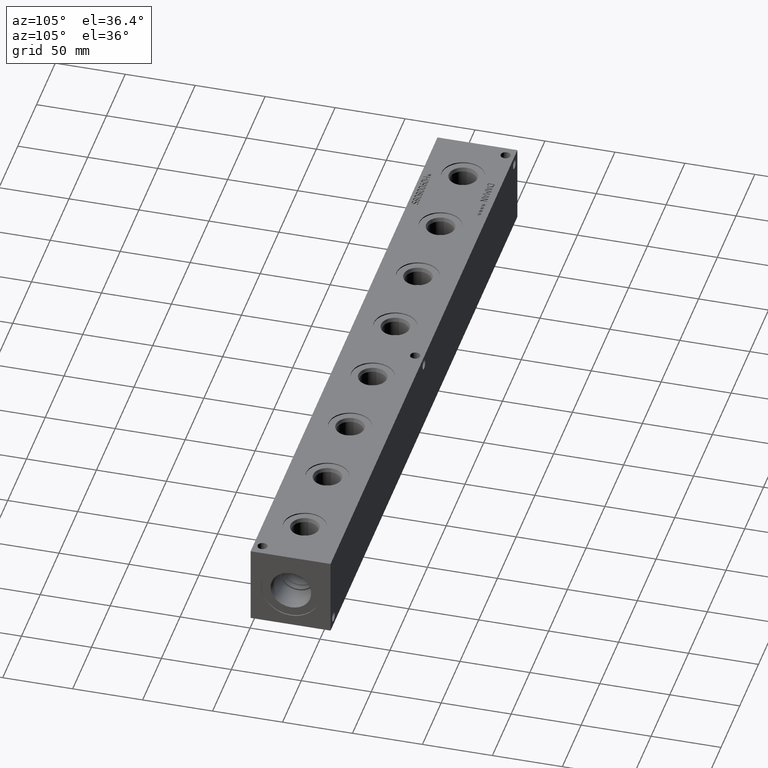
[diagram: clean part render]
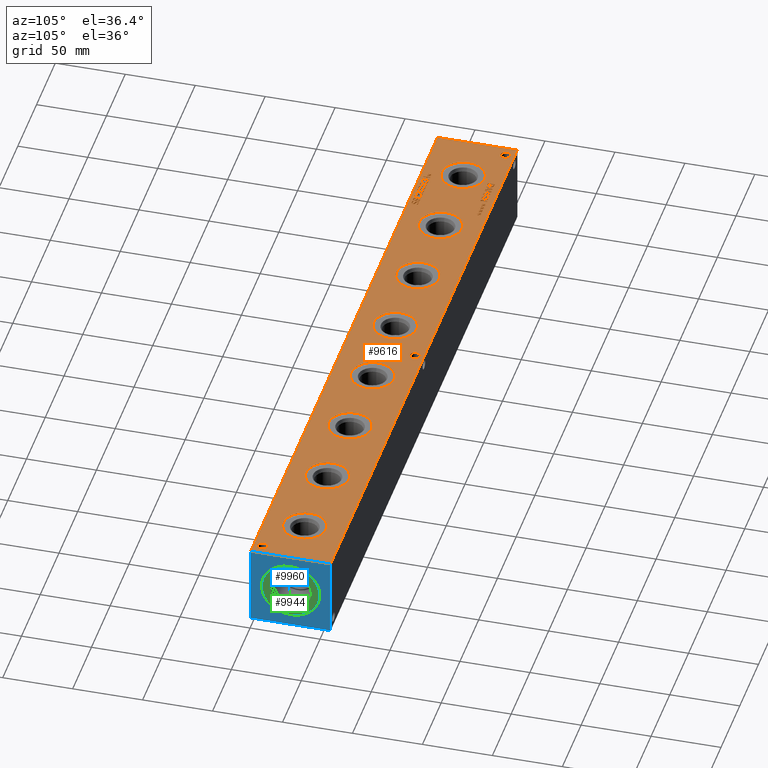
[diagram: same view with three faces highlighted in distinct colors, each labeled with its STEP entity id]
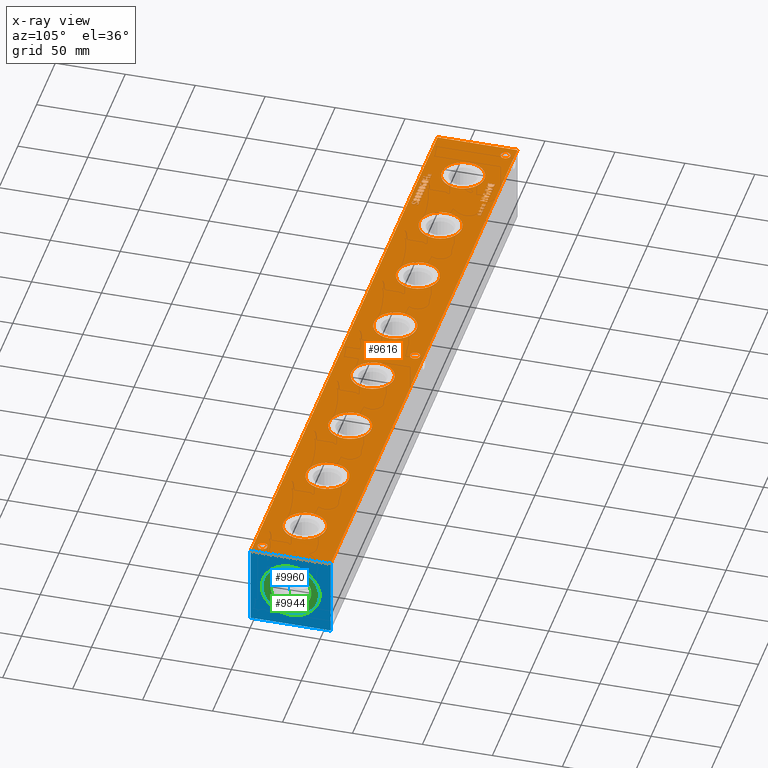
[diagram: x-ray of the same camera — body ghosted, the three highlighted faces saturated]
A machine part, auxiliary view with three faces highlighted in distinct colors.
The next image is the same camera in x-ray (body ghosted, the three faces saturated) — at least one of them is partly hidden behind the body in this view.
Their STEP definitions:

[orange] entity #9616 — the highlighted planar face has unit normal (0, 0, 1).
#180=CIRCLE('',#10029,3.5687);
#181=CIRCLE('',#10030,3.5687);
#182=CIRCLE('',#10031,3.5687);
#183=CIRCLE('',#10032,3.5687);
#184=CIRCLE('',#10033,3.5687);
#185=CIRCLE('',#10034,3.5687);
#186=CIRCLE('',#10035,15.3162);
#187=CIRCLE('',#10036,15.3162);
#188=CIRCLE('',#10037,15.3162);
#189=CIRCLE('',#10038,15.3162);
#190=CIRCLE('',#10039,15.3162);
#191=CIRCLE('',#10040,15.3162);
#192=CIRCLE('',#10041,15.3162);
#193=CIRCLE('',#10042,15.3162);
#194=CIRCLE('',#10043,15.3162);
#195=CIRCLE('',#10044,15.3162);
#196=CIRCLE('',#10045,15.3162);
#197=CIRCLE('',#10046,15.3162);
#198=CIRCLE('',#10047,15.3162);
#199=CIRCLE('',#10048,15.3162);
#200=CIRCLE('',#10049,15.3162);
#201=CIRCLE('',#10050,15.3162);
#519=FACE_BOUND('',#1543,.T.);
#520=FACE_BOUND('',#1544,.T.);
#521=FACE_BOUND('',#1545,.T.);
#522=FACE_BOUND('',#1546,.T.);
#523=FACE_BOUND('',#1547,.T.);
#524=FACE_BOUND('',#1548,.T.);
#525=FACE_BOUND('',#1549,.T.);
#526=FACE_BOUND('',#1550,.T.);
#527=FACE_BOUND('',#1551,.T.);
#528=FACE_BOUND('',#1552,.T.);
#529=FACE_BOUND('',#1553,.T.);
#530=FACE_BOUND('',#1554,.T.);
#531=FACE_BOUND('',#1555,.T.);
#532=FACE_BOUND('',#1556,.T.);
#533=FACE_BOUND('',#1557,.T.);
#534=FACE_BOUND('',#1558,.T.);
#535=FACE_BOUND('',#1559,.T.);
#536=FACE_BOUND('',#1560,.T.);
#537=FACE_BOUND('',#1561,.T.);
#538=FACE_BOUND('',#1562,.T.);
#539=FACE_BOUND('',#1563,.T.);
#540=FACE_BOUND('',#1564,.T.);
#541=FACE_BOUND('',#1565,.T.);
#542=FACE_BOUND('',#1566,.T.);
#543=FACE_BOUND('',#1567,.T.);
#544=FACE_BOUND('',#1568,.T.);
#545=FACE_BOUND('',#1569,.T.);
#546=FACE_BOUND('',#1570,.T.);
#547=FACE_BOUND('',#1571,.T.);
#548=FACE_BOUND('',#1572,.T.);
#657=PLANE('',#10028);
#1014=FACE_OUTER_BOUND('',#1542,.T.);
#1542=EDGE_LOOP('',(#6997,#6998,#6999,#7000));
#1543=EDGE_LOOP('',(#7001,#7002,#7003,#7004,#7005,#7006,#7007,#7008,#7009,
#7010,#7011,#7012,#7013,#7014,#7015,#7016,#7017,#7018));
#1544=EDGE_LOOP('',(#7019,#7020,#7021,#7022,#7023,#7024,#7025,#7026,#7027,
#7028,#7029,#7030,#7031,#7032,#7033,#7034,#7035,#7036));
#1545=EDGE_LOOP('',(#7037,#7038,#7039,#7040,#7041,#7042,#7043,#7044,#7045,
#7046,#7047,#7048,#7049));
#1546=EDGE_LOOP('',(#7050,#7051,#7052,#7053,#7054,#7055,#7056,#7057));
#1547=EDGE_LOOP('',(#7058,#7059,#7060,#7061,#7062,#7063,#7064));
#1548=EDGE_LOOP('',(#7065,#7066,#7067,#7068,#7069,#7070,#7071,#7072));
#1549=EDGE_LOOP('',(#7073,#7074,#7075,#7076,#7077,#7078,#7079,#7080,#7081,
#7082));
#1550=EDGE_LOOP('',(#7083,#7084,#7085,#7086,#7087,#7088,#7089,#7090,#7091,
#7092,#7093,#7094,#7095,#7096,#7097,#7098,#7099,#7100));
#1551=EDGE_LOOP('',(#7101,#7102,#7103,#7104,#7105,#7106,#7107,#7108,#7109,
#7110,#7111,#7112,#7113,#7114,#7115,#7116,#7117,#7118));
#1552=EDGE_LOOP('',(#7119,#7120));
#1553=EDGE_LOOP('',(#7121,#7122));
#1554=EDGE_LOOP('',(#7123,#7124));
#1555=EDGE_LOOP('',(#7125,#7126));
#1556=EDGE_LOOP('',(#7127,#7128));
#1557=EDGE_LOOP('',(#7129,#7130));
#1558=EDGE_LOOP('',(#7131,#7132));
#1559=EDGE_LOOP('',(#7133,#7134));
#1560=EDGE_LOOP('',(#7135,#7136));
#1561=EDGE_LOOP('',(#7137,#7138));
#1562=EDGE_LOOP('',(#7139,#7140));
#1563=EDGE_LOOP('',(#7141,#7142,#7143,#7144,#7145,#7146,#7147,#7148,#7149,
#7150,#7151,#7152,#7153,#7154,#7155,#7156,#7157,#7158,#7159,#7160));
#1564=EDGE_LOOP('',(#7161,#7162,#7163,#7164,#7165,#7166,#7167,#7168,#7169,
#7170,#7171));
#1565=EDGE_LOOP('',(#7172,#7173,#7174,#7175));
#1566=EDGE_LOOP('',(#7176,#7177,#7178,#7179));
#1567=EDGE_LOOP('',(#7180,#7181,#7182,#7183,#7184,#7185,#7186,#7187,#7188,
#7189,#7190,#7191,#7192,#7193));
#1568=EDGE_LOOP('',(#7194,#7195,#7196,#7197));
#1569=EDGE_LOOP('',(#7198,#7199,#7200,#7201,#7202,#7203,#7204,#7205,#7206,
#7207,#7208,#7209,#7210,#7211,#7212,#7213,#7214,#7215));
#1570=EDGE_LOOP('',(#7216,#7217,#7218,#7219,#7220,#7221,#7222,#7223,#7224,
#7225,#7226,#7227));
#1571=EDGE_LOOP('',(#7228,#7229,#7230,#7231));
#1572=EDGE_LOOP('',(#7232,#7233,#7234,#7235,#7236,#7237,#7238,#7239,#7240,
#7241,#7242));
#1991=LINE('',#13194,#2775);
#1998=LINE('',#13276,#2782);
#2015=LINE('',#13567,#2799);
#2019=LINE('',#13575,#2803);
#2022=LINE('',#13581,#2806);
#2025=LINE('',#13587,#2809);
#2028=LINE('',#13593,#2812);
#2031=LINE('',#13599,#2815);
#2034=LINE('',#13605,#2818);
#2037=LINE('',#13611,#2821);
#2040=LINE('',#13617,#2824);
#2043=LINE('',#13623,#2827);
#2046=LINE('',#13629,#2830);
#2049=LINE('',#13634,#2833);
#2051=LINE('',#13640,#2835);
#2055=LINE('',#13648,#2839);
#2058=LINE('',#13654,#2842);
#2061=LINE('',#13660,#2845);
#2064=LINE('',#13666,#2848);
#2067=LINE('',#13672,#2851);
#2070=LINE('',#13678,#2854);
#2073=LINE('',#13684,#2857);
#2076=LINE('',#13690,#2860);
#2079=LINE('',#13696,#2863);
#2082=LINE('',#13702,#2866);
#2085=LINE('',#13708,#2869);
#2088=LINE('',#13714,#2872);
#2091=LINE('',#13720,#2875);
#2094=LINE('',#13726,#2878);
#2097=LINE('',#13732,#2881);
#2100=LINE('',#13738,#2884);
#2103=LINE('',#13743,#2887);
#2130=LINE('',#14208,#2914);
#2133=LINE('',#14214,#2917);
#2179=LINE('',#15040,#2963);
#2186=LINE('',#15122,#2970);
#2199=LINE('',#15319,#2983);
#2202=LINE('',#15325,#2986);
#2213=LINE('',#15483,#2997);
#2216=LINE('',#15489,#3000);
#2219=LINE('',#15513,#3003);
#2220=LINE('',#15515,#3004);
#2221=LINE('',#15517,#3005);
#2222=LINE('',#15518,#3006);
#2223=LINE('',#15521,#3007);
#2224=LINE('',#15523,#3008);
#2225=LINE('',#15525,#3009);
#2226=LINE('',#15527,#3010);
#2227=LINE('',#15529,#3011);
#2228=LINE('',#15531,#3012);
#2229=LINE('',#15533,#3013);
#2230=LINE('',#15535,#3014);
#2231=LINE('',#15537,#3015);
#2232=LINE('',#15539,#3016);
#2233=LINE('',#15541,#3017);
#2234=LINE('',#15543,#3018);
#2235=LINE('',#15545,#3019);
#2236=LINE('',#15547,#3020);
#2237=LINE('',#15549,#3021);
#2238=LINE('',#15551,#3022);
#2239=LINE('',#15553,#3023);
#2240=LINE('',#15554,#3024);
#2241=LINE('',#15557,#3025);
#2242=LINE('',#15559,#3026);
#2243=LINE('',#15561,#3027);
#2244=LINE('',#15563,#3028);
#2245=LINE('',#15565,#3029);
#2246=LINE('',#15567,#3030);
#2247=LINE('',#15569,#3031);
#2248=LINE('',#15571,#3032);
#2249=LINE('',#15573,#3033);
#2250=LINE('',#15575,#3034);
#2251=LINE('',#15577,#3035);
#2252=LINE('',#15579,#3036);
#2253=LINE('',#15581,#3037);
#2254=LINE('',#15583,#3038);
#2255=LINE('',#15585,#3039);
#2256=LINE('',#15587,#3040);
#2257=LINE('',#15589,#3041);
#2258=LINE('',#15590,#3042);
#2259=LINE('',#15593,#3043);
#2260=LINE('',#15595,#3044);
#2261=LINE('',#15597,#3045);
#2262=LINE('',#15599,#3046);
#2263=LINE('',#15601,#3047);
#2264=LINE('',#15603,#3048);
#2265=LINE('',#15605,#3049);
#2266=LINE('',#15607,#3050);
#2267=LINE('',#15609,#3051);
#2268=LINE('',#15611,#3052);
#2269=LINE('',#15613,#3053);
#2270=LINE('',#15615,#3054);
#2271=LINE('',#15616,#3055);
#2272=LINE('',#15619,#3056);
#2273=LINE('',#15621,#3057);
#2274=LINE('',#15623,#3058);
#2275=LINE('',#15625,#3059);
#2276=LINE('',#15627,#3060);
#2277=LINE('',#15629,#3061);
#2278=LINE('',#15631,#3062);
#2279=LINE('',#15632,#3063);
#2280=LINE('',#15650,#3064);
#2281=LINE('',#15652,#3065);
#2282=LINE('',#15654,#3066);
#2283=LINE('',#15661,#3067);
#2284=LINE('',#15663,#3068);
#2285=LINE('',#15665,#3069);
#2286=LINE('',#15667,#3070);
#2287=LINE('',#15669,#3071);
#2288=LINE('',#15671,#3072);
#2289=LINE('',#15673,#3073);
#2290=LINE('',#15674,#3074);
#2291=LINE('',#15677,#3075);
#2292=LINE('',#15679,#3076);
#2293=LINE('',#15681,#3077);
#2294=LINE('',#15683,#3078);
#2295=LINE('',#15685,#3079);
#2296=LINE('',#15687,#3080);
#2297=LINE('',#15689,#3081);
#2298=LINE('',#15691,#3082);
#2299=LINE('',#15693,#3083);
#2300=LINE('',#15694,#3084);
#2301=LINE('',#15697,#3085);
#2302=LINE('',#15699,#3086);
#2303=LINE('',#15701,#3087);
#2304=LINE('',#15703,#3088);
#2305=LINE('',#15705,#3089);
#2306=LINE('',#15707,#3090);
#2307=LINE('',#15709,#3091);
#2308=LINE('',#15711,#3092);
#2309=LINE('',#15713,#3093);
#2310=LINE('',#15715,#3094);
#2311=LINE('',#15717,#3095);
#2312=LINE('',#15719,#3096);
#2313=LINE('',#15721,#3097);
#2314=LINE('',#15723,#3098);
#2315=LINE('',#15725,#3099);
#2316=LINE('',#15727,#3100);
#2317=LINE('',#15729,#3101);
#2318=LINE('',#15730,#3102);
#2319=LINE('',#15733,#3103);
#2320=LINE('',#15735,#3104);
#2321=LINE('',#15737,#3105);
#2322=LINE('',#15739,#3106);
#2323=LINE('',#15741,#3107);
#2324=LINE('',#15743,#3108);
#2325=LINE('',#15745,#3109);
#2326=LINE('',#15747,#3110);
#2327=LINE('',#15749,#3111);
#2328=LINE('',#15751,#3112);
#2329=LINE('',#15753,#3113);
#2330=LINE('',#15755,#3114);
#2331=LINE('',#15757,#3115);
#2332=LINE('',#15759,#3116);
#2333=LINE('',#15761,#3117);
#2334=LINE('',#15763,#3118);
#2335=LINE('',#15765,#3119);
#2336=LINE('',#15766,#3120);
#2775=VECTOR('',#10727,10.);
#2782=VECTOR('',#10736,10.);
#2799=VECTOR('',#10759,10.);
#2803=VECTOR('',#10765,10.);
#2806=VECTOR('',#10770,10.);
#2809=VECTOR('',#10775,10.);
#2812=VECTOR('',#10780,10.);
#2815=VECTOR('',#10785,10.);
#2818=VECTOR('',#10790,10.);
#2821=VECTOR('',#10795,10.);
#2824=VECTOR('',#10800,10.);
#2827=VECTOR('',#10805,10.);
#2830=VECTOR('',#10810,10.);
#2833=VECTOR('',#10815,10.);
#2835=VECTOR('',#10821,10.);
#2839=VECTOR('',#10827,10.);
#2842=VECTOR('',#10832,10.);
#2845=VECTOR('',#10837,10.);
#2848=VECTOR('',#10842,10.);
#2851=VECTOR('',#10847,10.);
#2854=VECTOR('',#10852,10.);
#2857=VECTOR('',#10857,10.);
#2860=VECTOR('',#10862,10.);
#2863=VECTOR('',#10867,10.);
#2866=VECTOR('',#10872,10.);
#2869=VECTOR('',#10877,10.);
#2872=VECTOR('',#10882,10.);
#2875=VECTOR('',#10887,10.);
#2878=VECTOR('',#10892,10.);
#2881=VECTOR('',#10897,10.);
#2884=VECTOR('',#10902,10.);
#2887=VECTOR('',#10907,10.);
#2914=VECTOR('',#10940,10.);
#2917=VECTOR('',#10945,10.);
#2963=VECTOR('',#10999,10.);
#2970=VECTOR('',#11008,10.);
#2983=VECTOR('',#11025,10.);
#2986=VECTOR('',#11030,10.);
#2997=VECTOR('',#11043,10.);
#3000=VECTOR('',#11048,10.);
#3003=VECTOR('',#11055,10.);
#3004=VECTOR('',#11056,10.);
#3005=VECTOR('',#11057,10.);
#3006=VECTOR('',#11058,10.);
#3007=VECTOR('',#11059,10.);
#3008=VECTOR('',#11060,10.);
#3009=VECTOR('',#11061,10.);
#3010=VECTOR('',#11062,10.);
#3011=VECTOR('',#11063,10.);
#3012=VECTOR('',#11064,10.);
#3013=VECTOR('',#11065,10.);
#3014=VECTOR('',#11066,10.);
#3015=VECTOR('',#11067,10.);
#3016=VECTOR('',#11068,10.);
#3017=VECTOR('',#11069,10.);
#3018=VECTOR('',#11070,10.);
#3019=VECTOR('',#11071,10.);
#3020=VECTOR('',#11072,10.);
#3021=VECTOR('',#11073,10.);
#3022=VECTOR('',#11074,10.);
#3023=VECTOR('',#11075,10.);
#3024=VECTOR('',#11076,10.);
#3025=VECTOR('',#11077,10.);
#3026=VECTOR('',#11078,10.);
#3027=VECTOR('',#11079,10.);
#3028=VECTOR('',#11080,10.);
#3029=VECTOR('',#11081,10.);
#3030=VECTOR('',#11082,10.);
#3031=VECTOR('',#11083,10.);
#3032=VECTOR('',#11084,10.);
#3033=VECTOR('',#11085,10.);
#3034=VECTOR('',#11086,10.);
#3035=VECTOR('',#11087,10.);
#3036=VECTOR('',#11088,10.);
#3037=VECTOR('',#11089,10.);
#3038=VECTOR('',#11090,10.);
#3039=VECTOR('',#11091,10.);
#3040=VECTOR('',#11092,10.);
#3041=VECTOR('',#11093,10.);
#3042=VECTOR('',#11094,10.);
#3043=VECTOR('',#11095,10.);
#3044=VECTOR('',#11096,10.);
#3045=VECTOR('',#11097,10.);
#3046=VECTOR('',#11098,10.);
#3047=VECTOR('',#11099,10.);
#3048=VECTOR('',#11100,10.);
#3049=VECTOR('',#11101,10.);
#3050=VECTOR('',#11102,10.);
#3051=VECTOR('',#11103,10.);
#3052=VECTOR('',#11104,10.);
#3053=VECTOR('',#11105,10.);
#3054=VECTOR('',#11106,10.);
#3055=VECTOR('',#11107,10.);
#3056=VECTOR('',#11108,10.);
#3057=VECTOR('',#11109,10.);
#3058=VECTOR('',#11110,10.);
#3059=VECTOR('',#11111,10.);
#3060=VECTOR('',#11112,10.);
#3061=VECTOR('',#11113,10.);
#3062=VECTOR('',#11114,10.);
#3063=VECTOR('',#11115,10.);
#3064=VECTOR('',#11116,10.);
#3065=VECTOR('',#11117,10.);
#3066=VECTOR('',#11118,10.);
#3067=VECTOR('',#11119,10.);
#3068=VECTOR('',#11120,10.);
#3069=VECTOR('',#11121,10.);
#3070=VECTOR('',#11122,10.);
#3071=VECTOR('',#11123,10.);
#3072=VECTOR('',#11124,10.);
#3073=VECTOR('',#11125,10.);
#3074=VECTOR('',#11126,10.);
#3075=VECTOR('',#11127,10.);
#3076=VECTOR('',#11128,10.);
#3077=VECTOR('',#11129,10.);
#3078=VECTOR('',#11130,10.);
#3079=VECTOR('',#11131,10.);
#3080=VECTOR('',#11132,10.);
#3081=VECTOR('',#11133,10.);
#3082=VECTOR('',#11134,10.);
#3083=VECTOR('',#11135,10.);
#3084=VECTOR('',#11136,10.);
#3085=VECTOR('',#11137,10.);
#3086=VECTOR('',#11138,10.);
#3087=VECTOR('',#11139,10.);
#3088=VECTOR('',#11140,10.);
#3089=VECTOR('',#11141,10.);
#3090=VECTOR('',#11142,10.);
#3091=VECTOR('',#11143,10.);
#3092=VECTOR('',#11144,10.);
#3093=VECTOR('',#11145,10.);
#3094=VECTOR('',#11146,10.);
#3095=VECTOR('',#11147,10.);
#3096=VECTOR('',#11148,10.);
#3097=VECTOR('',#11149,10.);
#3098=VECTOR('',#11150,10.);
#3099=VECTOR('',#11151,10.);
#3100=VECTOR('',#11152,10.);
#3101=VECTOR('',#11153,10.);
#3102=VECTOR('',#11154,10.);
#3103=VECTOR('',#11155,10.);
#3104=VECTOR('',#11156,10.);
#3105=VECTOR('',#11157,10.);
#3106=VECTOR('',#11158,10.);
#3107=VECTOR('',#11159,10.);
#3108=VECTOR('',#11160,10.);
#3109=VECTOR('',#11161,10.);
#3110=VECTOR('',#11162,10.);
#3111=VECTOR('',#11163,10.);
#3112=VECTOR('',#11164,10.);
#3113=VECTOR('',#11165,10.);
#3114=VECTOR('',#11166,10.);
#3115=VECTOR('',#11167,10.);
#3116=VECTOR('',#11168,10.);
#3117=VECTOR('',#11169,10.);
#3118=VECTOR('',#11170,10.);
#3119=VECTOR('',#11171,10.);
#3120=VECTOR('',#11172,10.);
#3566=B_SPLINE_CURVE_WITH_KNOTS('',2,(#13161,#13162,#13163,#13164),
 .UNSPECIFIED.,.F.,.F.,(3,1,3),(0.,1.,2.),.UNSPECIFIED.);
#3568=B_SPLINE_CURVE_WITH_KNOTS('',2,(#13182,#13183,#13184,#13185),
 .UNSPECIFIED.,.F.,.F.,(3,1,3),(0.,1.,2.),.UNSPECIFIED.);
#3570=B_SPLINE_CURVE_WITH_KNOTS('',2,(#13207,#13208,#13209,#13210),
 .UNSPECIFIED.,.F.,.F.,(3,1,3),(0.,1.,2.),.UNSPECIFIED.);
#3572=B_SPLINE_CURVE_WITH_KNOTS('',2,(#13226,#13227,#13228,#13229),
 .UNSPECIFIED.,.F.,.F.,(3,1,3),(0.,1.,2.),.UNSPECIFIED.);
#3574=B_SPLINE_CURVE_WITH_KNOTS('',2,(#13245,#13246,#13247,#13248),
 .UNSPECIFIED.,.F.,.F.,(3,1,3),(0.,1.,2.),.UNSPECIFIED.);
#3576=B_SPLINE_CURVE_WITH_KNOTS('',2,(#13264,#13265,#13266,#13267),
 .UNSPECIFIED.,.F.,.F.,(3,1,3),(0.,1.,2.),.UNSPECIFIED.);
#3578=B_SPLINE_CURVE_WITH_KNOTS('',2,(#13289,#13290,#13291,#13292),
 .UNSPECIFIED.,.F.,.F.,(3,1,3),(0.,1.,2.),.UNSPECIFIED.);
#3580=B_SPLINE_CURVE_WITH_KNOTS('',2,(#13308,#13309,#13310,#13311),
 .UNSPECIFIED.,.F.,.F.,(3,1,3),(0.,1.,2.),.UNSPECIFIED.);
#3582=B_SPLINE_CURVE_WITH_KNOTS('',2,(#13326,#13327,#13328,#13329),
 .UNSPECIFIED.,.F.,.F.,(3,1,3),(0.,1.,2.),.UNSPECIFIED.);
#3600=B_SPLINE_CURVE_WITH_KNOTS('',2,(#13497,#13498,#13499,#13500),
 .UNSPECIFIED.,.F.,.F.,(3,1,3),(0.,1.,2.),.UNSPECIFIED.);
#3602=B_SPLINE_CURVE_WITH_KNOTS('',2,(#13518,#13519,#13520,#13521),
 .UNSPECIFIED.,.F.,.F.,(3,1,3),(0.,1.,2.),.UNSPECIFIED.);
#3604=B_SPLINE_CURVE_WITH_KNOTS('',2,(#13537,#13538,#13539,#13540),
 .UNSPECIFIED.,.F.,.F.,(3,1,3),(0.,1.,2.),.UNSPECIFIED.);
#3606=B_SPLINE_CURVE_WITH_KNOTS('',2,(#13555,#13556,#13557,#13558),
 .UNSPECIFIED.,.F.,.F.,(3,1,3),(0.,1.,2.),.UNSPECIFIED.);
#3624=B_SPLINE_CURVE_WITH_KNOTS('',2,(#13908,#13909,#13910,#13911),
 .UNSPECIFIED.,.F.,.F.,(3,1,3),(0.,1.,2.),.UNSPECIFIED.);
#3626=B_SPLINE_CURVE_WITH_KNOTS('',2,(#13929,#13930,#13931,#13932),
 .UNSPECIFIED.,.F.,.F.,(3,1,3),(0.,1.,2.),.UNSPECIFIED.);
#3628=B_SPLINE_CURVE_WITH_KNOTS('',2,(#13948,#13949,#13950,#13951),
 .UNSPECIFIED.,.F.,.F.,(3,1,3),(0.,1.,2.),.UNSPECIFIED.);
#3630=B_SPLINE_CURVE_WITH_KNOTS('',2,(#13966,#13967,#13968,#13969),
 .UNSPECIFIED.,.F.,.F.,(3,1,3),(0.,1.,2.),.UNSPECIFIED.);
#3646=B_SPLINE_CURVE_WITH_KNOTS('',2,(#14118,#14119,#14120,#14121),
 .UNSPECIFIED.,.F.,.F.,(3,1,3),(0.,1.,2.),.UNSPECIFIED.);
#3648=B_SPLINE_CURVE_WITH_KNOTS('',2,(#14139,#14140,#14141,#14142),
 .UNSPECIFIED.,.F.,.F.,(3,1,3),(0.,1.,2.),.UNSPECIFIED.);
#3650=B_SPLINE_CURVE_WITH_KNOTS('',2,(#14158,#14159,#14160,#14161),
 .UNSPECIFIED.,.F.,.F.,(3,1,3),(0.,1.,2.),.UNSPECIFIED.);
#3652=B_SPLINE_CURVE_WITH_KNOTS('',2,(#14177,#14178,#14179,#14180),
 .UNSPECIFIED.,.F.,.F.,(3,1,3),(0.,1.,2.),.UNSPECIFIED.);
#3654=B_SPLINE_CURVE_WITH_KNOTS('',2,(#14196,#14197,#14198,#14199),
 .UNSPECIFIED.,.F.,.F.,(3,1,3),(0.,1.,2.),.UNSPECIFIED.);
#3656=B_SPLINE_CURVE_WITH_KNOTS('',2,(#14227,#14228,#14229,#14230),
 .UNSPECIFIED.,.F.,.F.,(3,1,3),(0.,1.,2.),.UNSPECIFIED.);
#3658=B_SPLINE_CURVE_WITH_KNOTS('',2,(#14246,#14247,#14248,#14249),
 .UNSPECIFIED.,.F.,.F.,(3,1,3),(0.,1.,2.),.UNSPECIFIED.);
#3660=B_SPLINE_CURVE_WITH_KNOTS('',2,(#14265,#14266,#14267,#14268),
 .UNSPECIFIED.,.F.,.F.,(3,1,3),(0.,1.,2.),.UNSPECIFIED.);
#3662=B_SPLINE_CURVE_WITH_KNOTS('',2,(#14284,#14285,#14286,#14287),
 .UNSPECIFIED.,.F.,.F.,(3,1,3),(0.,1.,2.),.UNSPECIFIED.);
#3664=B_SPLINE_CURVE_WITH_KNOTS('',2,(#14303,#14304,#14305,#14306),
 .UNSPECIFIED.,.F.,.F.,(3,1,3),(0.,1.,2.),.UNSPECIFIED.);
#3666=B_SPLINE_CURVE_WITH_KNOTS('',2,(#14322,#14323,#14324,#14325),
 .UNSPECIFIED.,.F.,.F.,(3,1,3),(0.,1.,2.),.UNSPECIFIED.);
#3668=B_SPLINE_CURVE_WITH_KNOTS('',2,(#14340,#14341,#14342,#14343),
 .UNSPECIFIED.,.F.,.F.,(3,1,3),(0.,1.,2.),.UNSPECIFIED.);
#3686=B_SPLINE_CURVE_WITH_KNOTS('',2,(#14511,#14512,#14513,#14514),
 .UNSPECIFIED.,.F.,.F.,(3,1,3),(0.,1.,2.),.UNSPECIFIED.);
#3688=B_SPLINE_CURVE_WITH_KNOTS('',2,(#14532,#14533,#14534,#14535),
 .UNSPECIFIED.,.F.,.F.,(3,1,3),(0.,1.,2.),.UNSPECIFIED.);
#3690=B_SPLINE_CURVE_WITH_KNOTS('',2,(#14551,#14552,#14553,#14554),
 .UNSPECIFIED.,.F.,.F.,(3,1,3),(0.,1.,2.),.UNSPECIFIED.);
#3692=B_SPLINE_CURVE_WITH_KNOTS('',2,(#14569,#14570,#14571,#14572),
 .UNSPECIFIED.,.F.,.F.,(3,1,3),(0.,1.,2.),.UNSPECIFIED.);
#3710=B_SPLINE_CURVE_WITH_KNOTS('',2,(#14740,#14741,#14742,#14743),
 .UNSPECIFIED.,.F.,.F.,(3,1,3),(0.,1.,2.),.UNSPECIFIED.);
#3712=B_SPLINE_CURVE_WITH_KNOTS('',2,(#14761,#14762,#14763,#14764),
 .UNSPECIFIED.,.F.,.F.,(3,1,3),(0.,1.,2.),.UNSPECIFIED.);
#3714=B_SPLINE_CURVE_WITH_KNOTS('',2,(#14780,#14781,#14782,#14783),
 .UNSPECIFIED.,.F.,.F.,(3,1,3),(0.,1.,2.),.UNSPECIFIED.);
#3716=B_SPLINE_CURVE_WITH_KNOTS('',2,(#14798,#14799,#14800,#14801),
 .UNSPECIFIED.,.F.,.F.,(3,1,3),(0.,1.,2.),.UNSPECIFIED.);
#3738=B_SPLINE_CURVE_WITH_KNOTS('',2,(#15007,#15008,#15009,#15010),
 .UNSPECIFIED.,.F.,.F.,(3,1,3),(0.,1.,2.),.UNSPECIFIED.);
#3740=B_SPLINE_CURVE_WITH_KNOTS('',2,(#15028,#15029,#15030,#15031),
 .UNSPECIFIED.,.F.,.F.,(3,1,3),(0.,1.,2.),.UNSPECIFIED.);
#3742=B_SPLINE_CURVE_WITH_KNOTS('',2,(#15053,#15054,#15055,#15056),
 .UNSPECIFIED.,.F.,.F.,(3,1,3),(0.,1.,2.),.UNSPECIFIED.);
#3744=B_SPLINE_CURVE_WITH_KNOTS('',2,(#15072,#15073,#15074,#15075),
 .UNSPECIFIED.,.F.,.F.,(3,1,3),(0.,1.,2.),.UNSPECIFIED.);
#3746=B_SPLINE_CURVE_WITH_KNOTS('',2,(#15091,#15092,#15093,#15094),
 .UNSPECIFIED.,.F.,.F.,(3,1,3),(0.,1.,2.),.UNSPECIFIED.);
#3748=B_SPLINE_CURVE_WITH_KNOTS('',2,(#15110,#15111,#15112,#15113),
 .UNSPECIFIED.,.F.,.F.,(3,1,3),(0.,1.,2.),.UNSPECIFIED.);
#3750=B_SPLINE_CURVE_WITH_KNOTS('',2,(#15135,#15136,#15137,#15138),
 .UNSPECIFIED.,.F.,.F.,(3,1,3),(0.,1.,2.),.UNSPECIFIED.);
#3752=B_SPLINE_CURVE_WITH_KNOTS('',2,(#15154,#15155,#15156,#15157),
 .UNSPECIFIED.,.F.,.F.,(3,1,3),(0.,1.,2.),.UNSPECIFIED.);
#3754=B_SPLINE_CURVE_WITH_KNOTS('',2,(#15172,#15173,#15174,#15175),
 .UNSPECIFIED.,.F.,.F.,(3,1,3),(0.,1.,2.),.UNSPECIFIED.);
#3756=B_SPLINE_CURVE_WITH_KNOTS('',2,(#15191,#15192,#15193,#15194),
 .UNSPECIFIED.,.F.,.F.,(3,1,3),(0.,1.,2.),.UNSPECIFIED.);
#3758=B_SPLINE_CURVE_WITH_KNOTS('',2,(#15212,#15213,#15214,#15215),
 .UNSPECIFIED.,.F.,.F.,(3,1,3),(0.,1.,2.),.UNSPECIFIED.);
#3760=B_SPLINE_CURVE_WITH_KNOTS('',2,(#15231,#15232,#15233,#15234),
 .UNSPECIFIED.,.F.,.F.,(3,1,3),(0.,1.,2.),.UNSPECIFIED.);
#3762=B_SPLINE_CURVE_WITH_KNOTS('',2,(#15250,#15251,#15252,#15253),
 .UNSPECIFIED.,.F.,.F.,(3,1,3),(0.,1.,2.),.UNSPECIFIED.);
#3764=B_SPLINE_CURVE_WITH_KNOTS('',2,(#15269,#15270,#15271,#15272),
 .UNSPECIFIED.,.F.,.F.,(3,1,3),(0.,1.,2.),.UNSPECIFIED.);
#3766=B_SPLINE_CURVE_WITH_KNOTS('',2,(#15288,#15289,#15290,#15291),
 .UNSPECIFIED.,.F.,.F.,(3,1,3),(0.,1.,2.),.UNSPECIFIED.);
#3768=B_SPLINE_CURVE_WITH_KNOTS('',2,(#15307,#15308,#15309,#15310),
 .UNSPECIFIED.,.F.,.F.,(3,1,3),(0.,1.,2.),.UNSPECIFIED.);
#3770=B_SPLINE_CURVE_WITH_KNOTS('',2,(#15338,#15339,#15340,#15341),
 .UNSPECIFIED.,.F.,.F.,(3,1,3),(0.,1.,2.),.UNSPECIFIED.);
#3772=B_SPLINE_CURVE_WITH_KNOTS('',2,(#15357,#15358,#15359,#15360),
 .UNSPECIFIED.,.F.,.F.,(3,1,3),(0.,1.,2.),.UNSPECIFIED.);
#3774=B_SPLINE_CURVE_WITH_KNOTS('',2,(#15376,#15377,#15378,#15379),
 .UNSPECIFIED.,.F.,.F.,(3,1,3),(0.,1.,2.),.UNSPECIFIED.);
#3776=B_SPLINE_CURVE_WITH_KNOTS('',2,(#15395,#15396,#15397,#15398),
 .UNSPECIFIED.,.F.,.F.,(3,1,3),(0.,1.,2.),.UNSPECIFIED.);
#3778=B_SPLINE_CURVE_WITH_KNOTS('',2,(#15414,#15415,#15416,#15417),
 .UNSPECIFIED.,.F.,.F.,(3,1,3),(0.,1.,2.),.UNSPECIFIED.);
#3780=B_SPLINE_CURVE_WITH_KNOTS('',2,(#15433,#15434,#15435,#15436),
 .UNSPECIFIED.,.F.,.F.,(3,1,3),(0.,1.,2.),.UNSPECIFIED.);
#3782=B_SPLINE_CURVE_WITH_KNOTS('',2,(#15452,#15453,#15454,#15455),
 .UNSPECIFIED.,.F.,.F.,(3,1,3),(0.,1.,2.),.UNSPECIFIED.);
#3784=B_SPLINE_CURVE_WITH_KNOTS('',2,(#15471,#15472,#15473,#15474),
 .UNSPECIFIED.,.F.,.F.,(3,1,3),(0.,1.,2.),.UNSPECIFIED.);
#3786=B_SPLINE_CURVE_WITH_KNOTS('',2,(#15501,#15502,#15503,#15504),
 .UNSPECIFIED.,.F.,.F.,(3,1,3),(0.,1.,2.),.UNSPECIFIED.);
#3788=B_SPLINE_CURVE_WITH_KNOTS('',2,(#15635,#15636,#15637,#15638),
 .UNSPECIFIED.,.F.,.F.,(3,1,3),(0.,1.,2.),.UNSPECIFIED.);
#3789=B_SPLINE_CURVE_WITH_KNOTS('',2,(#15640,#15641,#15642,#15643),
 .UNSPECIFIED.,.F.,.F.,(3,1,3),(0.,1.,2.),.UNSPECIFIED.);
#3790=B_SPLINE_CURVE_WITH_KNOTS('',2,(#15645,#15646,#15647,#15648),
 .UNSPECIFIED.,.F.,.F.,(3,1,3),(0.,1.,2.),.UNSPECIFIED.);
#3791=B_SPLINE_CURVE_WITH_KNOTS('',2,(#15655,#15656,#15657,#15658),
 .UNSPECIFIED.,.F.,.F.,(3,1,3),(0.,1.,2.),.UNSPECIFIED.);
#3846=VERTEX_POINT('',#13159);
#3847=VERTEX_POINT('',#13160);
#3850=VERTEX_POINT('',#13181);
#3852=VERTEX_POINT('',#13193);
#3854=VERTEX_POINT('',#13206);
#3856=VERTEX_POINT('',#13225);
#3858=VERTEX_POINT('',#13244);
#3860=VERTEX_POINT('',#13263);
#3862=VERTEX_POINT('',#13275);
#3864=VERTEX_POINT('',#13288);
#3866=VERTEX_POINT('',#13307);
#3884=VERTEX_POINT('',#13495);
#3885=VERTEX_POINT('',#13496);
#3888=VERTEX_POINT('',#13517);
#3890=VERTEX_POINT('',#13536);
#3892=VERTEX_POINT('',#13565);
#3893=VERTEX_POINT('',#13566);
#3896=VERTEX_POINT('',#13574);
#3898=VERTEX_POINT('',#13580);
#3900=VERTEX_POINT('',#13586);
#3902=VERTEX_POINT('',#13592);
#3904=VERTEX_POINT('',#13598);
#3906=VERTEX_POINT('',#13604);
#3908=VERTEX_POINT('',#13610);
#3910=VERTEX_POINT('',#13616);
#3912=VERTEX_POINT('',#13622);
#3914=VERTEX_POINT('',#13628);
#3916=VERTEX_POINT('',#13638);
#3917=VERTEX_POINT('',#13639);
#3920=VERTEX_POINT('',#13647);
#3922=VERTEX_POINT('',#13653);
#3924=VERTEX_POINT('',#13659);
#3926=VERTEX_POINT('',#13665);
#3928=VERTEX_POINT('',#13671);
#3930=VERTEX_POINT('',#13677);
#3932=VERTEX_POINT('',#13683);
#3934=VERTEX_POINT('',#13689);
#3936=VERTEX_POINT('',#13695);
#3938=VERTEX_POINT('',#13701);
#3940=VERTEX_POINT('',#13707);
#3942=VERTEX_POINT('',#13713);
#3944=VERTEX_POINT('',#13719);
#3946=VERTEX_POINT('',#13725);
#3948=VERTEX_POINT('',#13731);
#3950=VERTEX_POINT('',#13737);
#3968=VERTEX_POINT('',#13906);
#3969=VERTEX_POINT('',#13907);
#3972=VERTEX_POINT('',#13928);
#3974=VERTEX_POINT('',#13947);
#3990=VERTEX_POINT('',#14116);
#3991=VERTEX_POINT('',#14117);
#3994=VERTEX_POINT('',#14138);
#3996=VERTEX_POINT('',#14157);
#3998=VERTEX_POINT('',#14176);
#4000=VERTEX_POINT('',#14195);
#4002=VERTEX_POINT('',#14207);
#4004=VERTEX_POINT('',#14213);
#4006=VERTEX_POINT('',#14226);
#4008=VERTEX_POINT('',#14245);
#4010=VERTEX_POINT('',#14264);
#4012=VERTEX_POINT('',#14283);
#4014=VERTEX_POINT('',#14302);
#4016=VERTEX_POINT('',#14321);
#4034=VERTEX_POINT('',#14509);
#4035=VERTEX_POINT('',#14510);
#4038=VERTEX_POINT('',#14531);
#4040=VERTEX_POINT('',#14550);
#4058=VERTEX_POINT('',#14738);
#4059=VERTEX_POINT('',#14739);
#4062=VERTEX_POINT('',#14760);
#4064=VERTEX_POINT('',#14779);
#4086=VERTEX_POINT('',#15005);
#4087=VERTEX_POINT('',#15006);
#4090=VERTEX_POINT('',#15027);
#4092=VERTEX_POINT('',#15039);
#4094=VERTEX_POINT('',#15052);
#4096=VERTEX_POINT('',#15071);
#4098=VERTEX_POINT('',#15090);
#4100=VERTEX_POINT('',#15109);
#4102=VERTEX_POINT('',#15121);
#4104=VERTEX_POINT('',#15134);
#4106=VERTEX_POINT('',#15153);
#4108=VERTEX_POINT('',#15189);
#4109=VERTEX_POINT('',#15190);
#4112=VERTEX_POINT('',#15211);
#4114=VERTEX_POINT('',#15230);
#4116=VERTEX_POINT('',#15249);
#4118=VERTEX_POINT('',#15268);
#4120=VERTEX_POINT('',#15287);
#4122=VERTEX_POINT('',#15306);
#4124=VERTEX_POINT('',#15318);
#4126=VERTEX_POINT('',#15324);
#4128=VERTEX_POINT('',#15337);
#4130=VERTEX_POINT('',#15356);
#4132=VERTEX_POINT('',#15375);
#4134=VERTEX_POINT('',#15394);
#4136=VERTEX_POINT('',#15413);
#4138=VERTEX_POINT('',#15432);
#4140=VERTEX_POINT('',#15451);
#4142=VERTEX_POINT('',#15470);
#4144=VERTEX_POINT('',#15482);
#4146=VERTEX_POINT('',#15488);
#4148=VERTEX_POINT('',#15511);
#4149=VERTEX_POINT('',#15512);
#4150=VERTEX_POINT('',#15514);
#4151=VERTEX_POINT('',#15516);
#4152=VERTEX_POINT('',#15519);
#4153=VERTEX_POINT('',#15520);
#4154=VERTEX_POINT('',#15522);
#4155=VERTEX_POINT('',#15524);
#4156=VERTEX_POINT('',#15526);
#4157=VERTEX_POINT('',#15528);
#4158=VERTEX_POINT('',#15530);
#4159=VERTEX_POINT('',#15532);
#4160=VERTEX_POINT('',#15534);
#4161=VERTEX_POINT('',#15536);
#4162=VERTEX_POINT('',#15538);
#4163=VERTEX_POINT('',#15540);
#4164=VERTEX_POINT('',#15542);
#4165=VERTEX_POINT('',#15544);
#4166=VERTEX_POINT('',#15546);
#4167=VERTEX_POINT('',#15548);
#4168=VERTEX_POINT('',#15550);
#4169=VERTEX_POINT('',#15552);
#4170=VERTEX_POINT('',#15555);
#4171=VERTEX_POINT('',#15556);
#4172=VERTEX_POINT('',#15558);
#4173=VERTEX_POINT('',#15560);
#4174=VERTEX_POINT('',#15562);
#4175=VERTEX_POINT('',#15564);
#4176=VERTEX_POINT('',#15566);
#4177=VERTEX_POINT('',#15568);
#4178=VERTEX_POINT('',#15570);
#4179=VERTEX_POINT('',#15572);
#4180=VERTEX_POINT('',#15574);
#4181=VERTEX_POINT('',#15576);
#4182=VERTEX_POINT('',#15578);
#4183=VERTEX_POINT('',#15580);
#4184=VERTEX_POINT('',#15582);
#4185=VERTEX_POINT('',#15584);
#4186=VERTEX_POINT('',#15586);
#4187=VERTEX_POINT('',#15588);
#4188=VERTEX_POINT('',#15591);
#4189=VERTEX_POINT('',#15592);
#4190=VERTEX_POINT('',#15594);
#4191=VERTEX_POINT('',#15596);
#4192=VERTEX_POINT('',#15598);
#4193=VERTEX_POINT('',#15600);
#4194=VERTEX_POINT('',#15602);
#4195=VERTEX_POINT('',#15604);
#4196=VERTEX_POINT('',#15606);
#4197=VERTEX_POINT('',#15608);
#4198=VERTEX_POINT('',#15610);
#4199=VERTEX_POINT('',#15612);
#4200=VERTEX_POINT('',#15614);
#4201=VERTEX_POINT('',#15617);
#4202=VERTEX_POINT('',#15618);
#4203=VERTEX_POINT('',#15620);
#4204=VERTEX_POINT('',#15622);
#4205=VERTEX_POINT('',#15624);
#4206=VERTEX_POINT('',#15626);
#4207=VERTEX_POINT('',#15628);
#4208=VERTEX_POINT('',#15630);
#4209=VERTEX_POINT('',#15633);
#4210=VERTEX_POINT('',#15634);
#4211=VERTEX_POINT('',#15639);
#4212=VERTEX_POINT('',#15644);
#4213=VERTEX_POINT('',#15649);
#4214=VERTEX_POINT('',#15651);
#4215=VERTEX_POINT('',#15653);
#4216=VERTEX_POINT('',#15659);
#4217=VERTEX_POINT('',#15660);
#4218=VERTEX_POINT('',#15662);
#4219=VERTEX_POINT('',#15664);
#4220=VERTEX_POINT('',#15666);
#4221=VERTEX_POINT('',#15668);
#4222=VERTEX_POINT('',#15670);
#4223=VERTEX_POINT('',#15672);
#4224=VERTEX_POINT('',#15675);
#4225=VERTEX_POINT('',#15676);
#4226=VERTEX_POINT('',#15678);
#4227=VERTEX_POINT('',#15680);
#4228=VERTEX_POINT('',#15682);
#4229=VERTEX_POINT('',#15684);
#4230=VERTEX_POINT('',#15686);
#4231=VERTEX_POINT('',#15688);
#4232=VERTEX_POINT('',#15690);
#4233=VERTEX_POINT('',#15692);
#4234=VERTEX_POINT('',#15695);
#4235=VERTEX_POINT('',#15696);
#4236=VERTEX_POINT('',#15698);
#4237=VERTEX_POINT('',#15700);
#4238=VERTEX_POINT('',#15702);
#4239=VERTEX_POINT('',#15704);
#4240=VERTEX_POINT('',#15706);
#4241=VERTEX_POINT('',#15708);
#4242=VERTEX_POINT('',#15710);
#4243=VERTEX_POINT('',#15712);
#4244=VERTEX_POINT('',#15714);
#4245=VERTEX_POINT('',#15716);
#4246=VERTEX_POINT('',#15718);
#4247=VERTEX_POINT('',#15720);
#4248=VERTEX_POINT('',#15722);
#4249=VERTEX_POINT('',#15724);
#4250=VERTEX_POINT('',#15726);
#4251=VERTEX_POINT('',#15728);
#4252=VERTEX_POINT('',#15731);
#4253=VERTEX_POINT('',#15732);
#4254=VERTEX_POINT('',#15734);
#4255=VERTEX_POINT('',#15736);
#4256=VERTEX_POINT('',#15738);
#4257=VERTEX_POINT('',#15740);
#4258=VERTEX_POINT('',#15742);
#4259=VERTEX_POINT('',#15744);
#4260=VERTEX_POINT('',#15746);
#4261=VERTEX_POINT('',#15748);
#4262=VERTEX_POINT('',#15750);
#4263=VERTEX_POINT('',#15752);
#4264=VERTEX_POINT('',#15754);
#4265=VERTEX_POINT('',#15756);
#4266=VERTEX_POINT('',#15758);
#4267=VERTEX_POINT('',#15760);
#4268=VERTEX_POINT('',#15762);
#4269=VERTEX_POINT('',#15764);
#4270=VERTEX_POINT('',#15767);
#4271=VERTEX_POINT('',#15768);
#4272=VERTEX_POINT('',#15771);
#4273=VERTEX_POINT('',#15772);
#4274=VERTEX_POINT('',#15775);
#4275=VERTEX_POINT('',#15776);
#4276=VERTEX_POINT('',#15779);
#4277=VERTEX_POINT('',#15780);
#4278=VERTEX_POINT('',#15783);
#4279=VERTEX_POINT('',#15784);
#4280=VERTEX_POINT('',#15787);
#4281=VERTEX_POINT('',#15788);
#4282=VERTEX_POINT('',#15791);
#4283=VERTEX_POINT('',#15792);
#4284=VERTEX_POINT('',#15795);
#4285=VERTEX_POINT('',#15796);
#4286=VERTEX_POINT('',#15799);
#4287=VERTEX_POINT('',#15800);
#4288=VERTEX_POINT('',#15803);
#4289=VERTEX_POINT('',#15804);
#4290=VERTEX_POINT('',#15807);
#4291=VERTEX_POINT('',#15808);
#4816=EDGE_CURVE('',#3846,#3847,#3566,.T.);
#4820=EDGE_CURVE('',#3850,#3846,#3568,.T.);
#4823=EDGE_CURVE('',#3852,#3850,#1991,.T.);
#4826=EDGE_CURVE('',#3854,#3852,#3570,.T.);
#4829=EDGE_CURVE('',#3856,#3854,#3572,.T.);
#4832=EDGE_CURVE('',#3858,#3856,#3574,.T.);
#4835=EDGE_CURVE('',#3860,#3858,#3576,.T.);
#4838=EDGE_CURVE('',#3862,#3860,#1998,.T.);
#4841=EDGE_CURVE('',#3864,#3862,#3578,.T.);
#4844=EDGE_CURVE('',#3866,#3864,#3580,.T.);
#4847=EDGE_CURVE('',#3847,#3866,#3582,.T.);
#4873=EDGE_CURVE('',#3884,#3885,#3600,.T.);
#4877=EDGE_CURVE('',#3888,#3884,#3602,.T.);
#4880=EDGE_CURVE('',#3890,#3888,#3604,.T.);
#4883=EDGE_CURVE('',#3885,#3890,#3606,.T.);
#4885=EDGE_CURVE('',#3892,#3893,#2015,.T.);
#4889=EDGE_CURVE('',#3896,#3892,#2019,.T.);
#4892=EDGE_CURVE('',#3898,#3896,#2022,.T.);
#4895=EDGE_CURVE('',#3900,#3898,#2025,.T.);
#4898=EDGE_CURVE('',#3902,#3900,#2028,.T.);
#4901=EDGE_CURVE('',#3904,#3902,#2031,.T.);
#4904=EDGE_CURVE('',#3906,#3904,#2034,.T.);
#4907=EDGE_CURVE('',#3908,#3906,#2037,.T.);
#4910=EDGE_CURVE('',#3910,#3908,#2040,.T.);
#4913=EDGE_CURVE('',#3912,#3910,#2043,.T.);
#4916=EDGE_CURVE('',#3914,#3912,#2046,.T.);
#4919=EDGE_CURVE('',#3893,#3914,#2049,.T.);
#4921=EDGE_CURVE('',#3916,#3917,#2051,.T.);
#4925=EDGE_CURVE('',#3920,#3916,#2055,.T.);
#4928=EDGE_CURVE('',#3922,#3920,#2058,.T.);
#4931=EDGE_CURVE('',#3924,#3922,#2061,.T.);
#4934=EDGE_CURVE('',#3926,#3924,#2064,.T.);
#4937=EDGE_CURVE('',#3928,#3926,#2067,.T.);
#4940=EDGE_CURVE('',#3930,#3928,#2070,.T.);
#4943=EDGE_CURVE('',#3932,#3930,#2073,.T.);
#4946=EDGE_CURVE('',#3934,#3932,#2076,.T.);
#4949=EDGE_CURVE('',#3936,#3934,#2079,.T.);
#4952=EDGE_CURVE('',#3938,#3936,#2082,.T.);
#4955=EDGE_CURVE('',#3940,#3938,#2085,.T.);
#4958=EDGE_CURVE('',#3942,#3940,#2088,.T.);
#4961=EDGE_CURVE('',#3944,#3942,#2091,.T.);
#4964=EDGE_CURVE('',#3946,#3944,#2094,.T.);
#4967=EDGE_CURVE('',#3948,#3946,#2097,.T.);
#4970=EDGE_CURVE('',#3950,#3948,#2100,.T.);
#4973=EDGE_CURVE('',#3917,#3950,#2103,.T.);
#4999=EDGE_CURVE('',#3968,#3969,#3624,.T.);
#5003=EDGE_CURVE('',#3972,#3968,#3626,.T.);
#5006=EDGE_CURVE('',#3974,#3972,#3628,.T.);
#5009=EDGE_CURVE('',#3969,#3974,#3630,.T.);
#5032=EDGE_CURVE('',#3990,#3991,#3646,.T.);
#5036=EDGE_CURVE('',#3994,#3990,#3648,.T.);
#5039=EDGE_CURVE('',#3996,#3994,#3650,.T.);
#5042=EDGE_CURVE('',#3998,#3996,#3652,.T.);
#5045=EDGE_CURVE('',#4000,#3998,#3654,.T.);
#5048=EDGE_CURVE('',#4002,#4000,#2130,.T.);
#5051=EDGE_CURVE('',#4004,#4002,#2133,.T.);
#5054=EDGE_CURVE('',#4006,#4004,#3656,.T.);
#5057=EDGE_CURVE('',#4008,#4006,#3658,.T.);
#5060=EDGE_CURVE('',#4010,#4008,#3660,.T.);
#5063=EDGE_CURVE('',#4012,#4010,#3662,.T.);
#5066=EDGE_CURVE('',#4014,#4012,#3664,.T.);
#5069=EDGE_CURVE('',#4016,#4014,#3666,.T.);
#5072=EDGE_CURVE('',#3991,#4016,#3668,.T.);
#5098=EDGE_CURVE('',#4034,#4035,#3686,.T.);
#5102=EDGE_CURVE('',#4038,#4034,#3688,.T.);
#5105=EDGE_CURVE('',#4040,#4038,#3690,.T.);
#5108=EDGE_CURVE('',#4035,#4040,#3692,.T.);
#5134=EDGE_CURVE('',#4058,#4059,#3710,.T.);
#5138=EDGE_CURVE('',#4062,#4058,#3712,.T.);
#5141=EDGE_CURVE('',#4064,#4062,#3714,.T.);
#5144=EDGE_CURVE('',#4059,#4064,#3716,.T.);
#5176=EDGE_CURVE('',#4086,#4087,#3738,.T.);
#5180=EDGE_CURVE('',#4090,#4086,#3740,.T.);
#5183=EDGE_CURVE('',#4092,#4090,#2179,.T.);
#5186=EDGE_CURVE('',#4094,#4092,#3742,.T.);
#5189=EDGE_CURVE('',#4096,#4094,#3744,.T.);
#5192=EDGE_CURVE('',#4098,#4096,#3746,.T.);
#5195=EDGE_CURVE('',#4100,#4098,#3748,.T.);
#5198=EDGE_CURVE('',#4102,#4100,#2186,.T.);
#5201=EDGE_CURVE('',#4104,#4102,#3750,.T.);
#5204=EDGE_CURVE('',#4106,#4104,#3752,.T.);
#5207=EDGE_CURVE('',#4087,#4106,#3754,.T.);
#5209=EDGE_CURVE('',#4108,#4109,#3756,.T.);
#5213=EDGE_CURVE('',#4112,#4108,#3758,.T.);
#5216=EDGE_CURVE('',#4114,#4112,#3760,.T.);
#5219=EDGE_CURVE('',#4116,#4114,#3762,.T.);
#5222=EDGE_CURVE('',#4118,#4116,#3764,.T.);
#5225=EDGE_CURVE('',#4120,#4118,#3766,.T.);
#5228=EDGE_CURVE('',#4122,#4120,#3768,.T.);
#5231=EDGE_CURVE('',#4124,#4122,#2199,.T.);
#5234=EDGE_CURVE('',#4126,#4124,#2202,.T.);
#5237=EDGE_CURVE('',#4128,#4126,#3770,.T.);
#5240=EDGE_CURVE('',#4130,#4128,#3772,.T.);
#5243=EDGE_CURVE('',#4132,#4130,#3774,.T.);
#5246=EDGE_CURVE('',#4134,#4132,#3776,.T.);
#5249=EDGE_CURVE('',#4136,#4134,#3778,.T.);
#5252=EDGE_CURVE('',#4138,#4136,#3780,.T.);
#5255=EDGE_CURVE('',#4140,#4138,#3782,.T.);
#5258=EDGE_CURVE('',#4142,#4140,#3784,.T.);
#5261=EDGE_CURVE('',#4144,#4142,#2213,.T.);
#5264=EDGE_CURVE('',#4146,#4144,#2216,.T.);
#5267=EDGE_CURVE('',#4109,#4146,#3786,.T.);
#5269=EDGE_CURVE('',#4148,#4149,#2219,.T.);
#5270=EDGE_CURVE('',#4149,#4150,#2220,.T.);
#5271=EDGE_CURVE('',#4150,#4151,#2221,.T.);
#5272=EDGE_CURVE('',#4151,#4148,#2222,.T.);
#5273=EDGE_CURVE('',#4152,#4153,#2223,.T.);
#5274=EDGE_CURVE('',#4153,#4154,#2224,.T.);
#5275=EDGE_CURVE('',#4154,#4155,#2225,.T.);
#5276=EDGE_CURVE('',#4155,#4156,#2226,.T.);
#5277=EDGE_CURVE('',#4156,#4157,#2227,.T.);
#5278=EDGE_CURVE('',#4157,#4158,#2228,.T.);
#5279=EDGE_CURVE('',#4158,#4159,#2229,.T.);
#5280=EDGE_CURVE('',#4159,#4160,#2230,.T.);
#5281=EDGE_CURVE('',#4160,#4161,#2231,.T.);
#5282=EDGE_CURVE('',#4161,#4162,#2232,.T.);
#5283=EDGE_CURVE('',#4162,#4163,#2233,.T.);
#5284=EDGE_CURVE('',#4163,#4164,#2234,.T.);
#5285=EDGE_CURVE('',#4164,#4165,#2235,.T.);
#5286=EDGE_CURVE('',#4165,#4166,#2236,.T.);
#5287=EDGE_CURVE('',#4166,#4167,#2237,.T.);
#5288=EDGE_CURVE('',#4167,#4168,#2238,.T.);
#5289=EDGE_CURVE('',#4168,#4169,#2239,.T.);
#5290=EDGE_CURVE('',#4169,#4152,#2240,.T.);
#5291=EDGE_CURVE('',#4170,#4171,#2241,.T.);
#5292=EDGE_CURVE('',#4171,#4172,#2242,.T.);
#5293=EDGE_CURVE('',#4172,#4173,#2243,.T.);
#5294=EDGE_CURVE('',#4173,#4174,#2244,.T.);
#5295=EDGE_CURVE('',#4174,#4175,#2245,.T.);
#5296=EDGE_CURVE('',#4175,#4176,#2246,.T.);
#5297=EDGE_CURVE('',#4176,#4177,#2247,.T.);
#5298=EDGE_CURVE('',#4177,#4178,#2248,.T.);
#5299=EDGE_CURVE('',#4178,#4179,#2249,.T.);
#5300=EDGE_CURVE('',#4179,#4180,#2250,.T.);
#5301=EDGE_CURVE('',#4180,#4181,#2251,.T.);
#5302=EDGE_CURVE('',#4181,#4182,#2252,.T.);
#5303=EDGE_CURVE('',#4182,#4183,#2253,.T.);
#5304=EDGE_CURVE('',#4183,#4184,#2254,.T.);
#5305=EDGE_CURVE('',#4184,#4185,#2255,.T.);
#5306=EDGE_CURVE('',#4185,#4186,#2256,.T.);
#5307=EDGE_CURVE('',#4186,#4187,#2257,.T.);
#5308=EDGE_CURVE('',#4187,#4170,#2258,.T.);
#5309=EDGE_CURVE('',#4188,#4189,#2259,.T.);
#5310=EDGE_CURVE('',#4189,#4190,#2260,.T.);
#5311=EDGE_CURVE('',#4190,#4191,#2261,.T.);
#5312=EDGE_CURVE('',#4191,#4192,#2262,.T.);
#5313=EDGE_CURVE('',#4192,#4193,#2263,.T.);
#5314=EDGE_CURVE('',#4193,#4194,#2264,.T.);
#5315=EDGE_CURVE('',#4194,#4195,#2265,.T.);
#5316=EDGE_CURVE('',#4195,#4196,#2266,.T.);
#5317=EDGE_CURVE('',#4196,#4197,#2267,.T.);
#5318=EDGE_CURVE('',#4197,#4198,#2268,.T.);
#5319=EDGE_CURVE('',#4198,#4199,#2269,.T.);
#5320=EDGE_CURVE('',#4199,#4200,#2270,.T.);
#5321=EDGE_CURVE('',#4200,#4188,#2271,.T.);
#5322=EDGE_CURVE('',#4201,#4202,#2272,.T.);
#5323=EDGE_CURVE('',#4202,#4203,#2273,.T.);
#5324=EDGE_CURVE('',#4203,#4204,#2274,.T.);
#5325=EDGE_CURVE('',#4204,#4205,#2275,.T.);
#5326=EDGE_CURVE('',#4205,#4206,#2276,.T.);
#5327=EDGE_CURVE('',#4206,#4207,#2277,.T.);
#5328=EDGE_CURVE('',#4207,#4208,#2278,.T.);
#5329=EDGE_CURVE('',#4208,#4201,#2279,.T.);
#5330=EDGE_CURVE('',#4209,#4210,#3788,.T.);
#5331=EDGE_CURVE('',#4210,#4211,#3789,.T.);
#5332=EDGE_CURVE('',#4211,#4212,#3790,.T.);
#5333=EDGE_CURVE('',#4212,#4213,#2280,.T.);
#5334=EDGE_CURVE('',#4213,#4214,#2281,.T.);
#5335=EDGE_CURVE('',#4214,#4215,#2282,.T.);
#5336=EDGE_CURVE('',#4215,#4209,#3791,.T.);
#5337=EDGE_CURVE('',#4216,#4217,#2283,.T.);
#5338=EDGE_CURVE('',#4217,#4218,#2284,.T.);
#5339=EDGE_CURVE('',#4218,#4219,#2285,.T.);
#5340=EDGE_CURVE('',#4219,#4220,#2286,.T.);
#5341=EDGE_CURVE('',#4220,#4221,#2287,.T.);
#5342=EDGE_CURVE('',#4221,#4222,#2288,.T.);
#5343=EDGE_CURVE('',#4222,#4223,#2289,.T.);
#5344=EDGE_CURVE('',#4223,#4216,#2290,.T.);
#5345=EDGE_CURVE('',#4224,#4225,#2291,.T.);
#5346=EDGE_CURVE('',#4225,#4226,#2292,.T.);
#5347=EDGE_CURVE('',#4226,#4227,#2293,.T.);
#5348=EDGE_CURVE('',#4227,#4228,#2294,.T.);
#5349=EDGE_CURVE('',#4228,#4229,#2295,.T.);
#5350=EDGE_CURVE('',#4229,#4230,#2296,.T.);
#5351=EDGE_CURVE('',#4230,#4231,#2297,.T.);
#5352=EDGE_CURVE('',#4231,#4232,#2298,.T.);
#5353=EDGE_CURVE('',#4232,#4233,#2299,.T.);
#5354=EDGE_CURVE('',#4233,#4224,#2300,.T.);
#5355=EDGE_CURVE('',#4234,#4235,#2301,.T.);
#5356=EDGE_CURVE('',#4235,#4236,#2302,.T.);
#5357=EDGE_CURVE('',#4236,#4237,#2303,.T.);
#5358=EDGE_CURVE('',#4237,#4238,#2304,.T.);
#5359=EDGE_CURVE('',#4238,#4239,#2305,.T.);
#5360=EDGE_CURVE('',#4239,#4240,#2306,.T.);
#5361=EDGE_CURVE('',#4240,#4241,#2307,.T.);
#5362=EDGE_CURVE('',#4241,#4242,#2308,.T.);
#5363=EDGE_CURVE('',#4242,#4243,#2309,.T.);
#5364=EDGE_CURVE('',#4243,#4244,#2310,.T.);
#5365=EDGE_CURVE('',#4244,#4245,#2311,.T.);
#5366=EDGE_CURVE('',#4245,#4246,#2312,.T.);
#5367=EDGE_CURVE('',#4246,#4247,#2313,.T.);
#5368=EDGE_CURVE('',#4247,#4248,#2314,.T.);
#5369=EDGE_CURVE('',#4248,#4249,#2315,.T.);
#5370=EDGE_CURVE('',#4249,#4250,#2316,.T.);
#5371=EDGE_CURVE('',#4250,#4251,#2317,.T.);
#5372=EDGE_CURVE('',#4251,#4234,#2318,.T.);
#5373=EDGE_CURVE('',#4252,#4253,#2319,.T.);
#5374=EDGE_CURVE('',#4253,#4254,#2320,.T.);
#5375=EDGE_CURVE('',#4254,#4255,#2321,.T.);
#5376=EDGE_CURVE('',#4255,#4256,#2322,.T.);
#5377=EDGE_CURVE('',#4256,#4257,#2323,.T.);
#5378=EDGE_CURVE('',#4257,#4258,#2324,.T.);
#5379=EDGE_CURVE('',#4258,#4259,#2325,.T.);
#5380=EDGE_CURVE('',#4259,#4260,#2326,.T.);
#5381=EDGE_CURVE('',#4260,#4261,#2327,.T.);
#5382=EDGE_CURVE('',#4261,#4262,#2328,.T.);
#5383=EDGE_CURVE('',#4262,#4263,#2329,.T.);
#5384=EDGE_CURVE('',#4263,#4264,#2330,.T.);
#5385=EDGE_CURVE('',#4264,#4265,#2331,.T.);
#5386=EDGE_CURVE('',#4265,#4266,#2332,.T.);
#5387=EDGE_CURVE('',#4266,#4267,#2333,.T.);
#5388=EDGE_CURVE('',#4267,#4268,#2334,.T.);
#5389=EDGE_CURVE('',#4268,#4269,#2335,.T.);
#5390=EDGE_CURVE('',#4269,#4252,#2336,.T.);
#5391=EDGE_CURVE('',#4270,#4271,#180,.T.);
#5392=EDGE_CURVE('',#4271,#4270,#181,.T.);
#5393=EDGE_CURVE('',#4272,#4273,#182,.T.);
#5394=EDGE_CURVE('',#4273,#4272,#183,.T.);
#5395=EDGE_CURVE('',#4274,#4275,#184,.T.);
#5396=EDGE_CURVE('',#4275,#4274,#185,.T.);
#5397=EDGE_CURVE('',#4276,#4277,#186,.T.);
#5398=EDGE_CURVE('',#4277,#4276,#187,.T.);
#5399=EDGE_CURVE('',#4278,#4279,#188,.T.);
#5400=EDGE_CURVE('',#4279,#4278,#189,.T.);
#5401=EDGE_CURVE('',#4280,#4281,#190,.T.);
#5402=EDGE_CURVE('',#4281,#4280,#191,.T.);
#5403=EDGE_CURVE('',#4282,#4283,#192,.T.);
#5404=EDGE_CURVE('',#4283,#4282,#193,.T.);
#5405=EDGE_CURVE('',#4284,#4285,#194,.T.);
#5406=EDGE_CURVE('',#4285,#4284,#195,.T.);
#5407=EDGE_CURVE('',#4286,#4287,#196,.T.);
#5408=EDGE_CURVE('',#4287,#4286,#197,.T.);
#5409=EDGE_CURVE('',#4288,#4289,#198,.T.);
#5410=EDGE_CURVE('',#4289,#4288,#199,.T.);
#5411=EDGE_CURVE('',#4290,#4291,#200,.T.);
#5412=EDGE_CURVE('',#4291,#4290,#201,.T.);
#6997=ORIENTED_EDGE('',*,*,#5269,.T.);
#6998=ORIENTED_EDGE('',*,*,#5270,.T.);
#6999=ORIENTED_EDGE('',*,*,#5271,.T.);
#7000=ORIENTED_EDGE('',*,*,#5272,.T.);
#7001=ORIENTED_EDGE('',*,*,#5273,.T.);
#7002=ORIENTED_EDGE('',*,*,#5274,.T.);
#7003=ORIENTED_EDGE('',*,*,#5275,.T.);
#7004=ORIENTED_EDGE('',*,*,#5276,.T.);
#7005=ORIENTED_EDGE('',*,*,#5277,.T.);
#7006=ORIENTED_EDGE('',*,*,#5278,.T.);
#7007=ORIENTED_EDGE('',*,*,#5279,.T.);
#7008=ORIENTED_EDGE('',*,*,#5280,.T.);
#7009=ORIENTED_EDGE('',*,*,#5281,.T.);
#7010=ORIENTED_EDGE('',*,*,#5282,.T.);
#7011=ORIENTED_EDGE('',*,*,#5283,.T.);
#7012=ORIENTED_EDGE('',*,*,#5284,.T.);
#7013=ORIENTED_EDGE('',*,*,#5285,.T.);
#7014=ORIENTED_EDGE('',*,*,#5286,.T.);
#7015=ORIENTED_EDGE('',*,*,#5287,.T.);
#7016=ORIENTED_EDGE('',*,*,#5288,.T.);
#7017=ORIENTED_EDGE('',*,*,#5289,.T.);
#7018=ORIENTED_EDGE('',*,*,#5290,.T.);
#7019=ORIENTED_EDGE('',*,*,#5291,.T.);
#7020=ORIENTED_EDGE('',*,*,#5292,.T.);
#7021=ORIENTED_EDGE('',*,*,#5293,.T.);
#7022=ORIENTED_EDGE('',*,*,#5294,.T.);
#7023=ORIENTED_EDGE('',*,*,#5295,.T.);
#7024=ORIENTED_EDGE('',*,*,#5296,.T.);
#7025=ORIENTED_EDGE('',*,*,#5297,.T.);
#7026=ORIENTED_EDGE('',*,*,#5298,.T.);
#7027=ORIENTED_EDGE('',*,*,#5299,.T.);
#7028=ORIENTED_EDGE('',*,*,#5300,.T.);
#7029=ORIENTED_EDGE('',*,*,#5301,.T.);
#7030=ORIENTED_EDGE('',*,*,#5302,.T.);
#7031=ORIENTED_EDGE('',*,*,#5303,.T.);
#7032=ORIENTED_EDGE('',*,*,#5304,.T.);
#7033=ORIENTED_EDGE('',*,*,#5305,.T.);
#7034=ORIENTED_EDGE('',*,*,#5306,.T.);
#7035=ORIENTED_EDGE('',*,*,#5307,.T.);
#7036=ORIENTED_EDGE('',*,*,#5308,.T.);
#7037=ORIENTED_EDGE('',*,*,#5309,.T.);
#7038=ORIENTED_EDGE('',*,*,#5310,.T.);
#7039=ORIENTED_EDGE('',*,*,#5311,.T.);
#7040=ORIENTED_EDGE('',*,*,#5312,.T.);
#7041=ORIENTED_EDGE('',*,*,#5313,.T.);
#7042=ORIENTED_EDGE('',*,*,#5314,.T.);
#7043=ORIENTED_EDGE('',*,*,#5315,.T.);
#7044=ORIENTED_EDGE('',*,*,#5316,.T.);
#7045=ORIENTED_EDGE('',*,*,#5317,.T.);
#7046=ORIENTED_EDGE('',*,*,#5318,.T.);
#7047=ORIENTED_EDGE('',*,*,#5319,.T.);
#7048=ORIENTED_EDGE('',*,*,#5320,.T.);
#7049=ORIENTED_EDGE('',*,*,#5321,.T.);
#7050=ORIENTED_EDGE('',*,*,#5322,.T.);
#7051=ORIENTED_EDGE('',*,*,#5323,.T.);
#7052=ORIENTED_EDGE('',*,*,#5324,.T.);
#7053=ORIENTED_EDGE('',*,*,#5325,.T.);
#7054=ORIENTED_EDGE('',*,*,#5326,.T.);
#7055=ORIENTED_EDGE('',*,*,#5327,.T.);
#7056=ORIENTED_EDGE('',*,*,#5328,.T.);
#7057=ORIENTED_EDGE('',*,*,#5329,.T.);
#7058=ORIENTED_EDGE('',*,*,#5330,.T.);
#7059=ORIENTED_EDGE('',*,*,#5331,.T.);
#7060=ORIENTED_EDGE('',*,*,#5332,.T.);
#7061=ORIENTED_EDGE('',*,*,#5333,.T.);
#7062=ORIENTED_EDGE('',*,*,#5334,.T.);
#7063=ORIENTED_EDGE('',*,*,#5335,.T.);
#7064=ORIENTED_EDGE('',*,*,#5336,.T.);
#7065=ORIENTED_EDGE('',*,*,#5337,.T.);
#7066=ORIENTED_EDGE('',*,*,#5338,.T.);
#7067=ORIENTED_EDGE('',*,*,#5339,.T.);
#7068=ORIENTED_EDGE('',*,*,#5340,.T.);
#7069=ORIENTED_EDGE('',*,*,#5341,.T.);
#7070=ORIENTED_EDGE('',*,*,#5342,.T.);
#7071=ORIENTED_EDGE('',*,*,#5343,.T.);
#7072=ORIENTED_EDGE('',*,*,#5344,.T.);
#7073=ORIENTED_EDGE('',*,*,#5345,.T.);
#7074=ORIENTED_EDGE('',*,*,#5346,.T.);
#7075=ORIENTED_EDGE('',*,*,#5347,.T.);
#7076=ORIENTED_EDGE('',*,*,#5348,.T.);
#7077=ORIENTED_EDGE('',*,*,#5349,.T.);
#7078=ORIENTED_EDGE('',*,*,#5350,.T.);
#7079=ORIENTED_EDGE('',*,*,#5351,.T.);
#7080=ORIENTED_EDGE('',*,*,#5352,.T.);
#7081=ORIENTED_EDGE('',*,*,#5353,.T.);
#7082=ORIENTED_EDGE('',*,*,#5354,.T.);
#7083=ORIENTED_EDGE('',*,*,#5355,.T.);
#7084=ORIENTED_EDGE('',*,*,#5356,.T.);
#7085=ORIENTED_EDGE('',*,*,#5357,.T.);
#7086=ORIENTED_EDGE('',*,*,#5358,.T.);
#7087=ORIENTED_EDGE('',*,*,#5359,.T.);
#7088=ORIENTED_EDGE('',*,*,#5360,.T.);
#7089=ORIENTED_EDGE('',*,*,#5361,.T.);
#7090=ORIENTED_EDGE('',*,*,#5362,.T.);
#7091=ORIENTED_EDGE('',*,*,#5363,.T.);
#7092=ORIENTED_EDGE('',*,*,#5364,.T.);
#7093=ORIENTED_EDGE('',*,*,#5365,.T.);
#7094=ORIENTED_EDGE('',*,*,#5366,.T.);
#7095=ORIENTED_EDGE('',*,*,#5367,.T.);
#7096=ORIENTED_EDGE('',*,*,#5368,.T.);
#7097=ORIENTED_EDGE('',*,*,#5369,.T.);
#7098=ORIENTED_EDGE('',*,*,#5370,.T.);
#7099=ORIENTED_EDGE('',*,*,#5371,.T.);
#7100=ORIENTED_EDGE('',*,*,#5372,.T.);
#7101=ORIENTED_EDGE('',*,*,#5373,.T.);
#7102=ORIENTED_EDGE('',*,*,#5374,.T.);
#7103=ORIENTED_EDGE('',*,*,#5375,.T.);
#7104=ORIENTED_EDGE('',*,*,#5376,.T.);
#7105=ORIENTED_EDGE('',*,*,#5377,.T.);
#7106=ORIENTED_EDGE('',*,*,#5378,.T.);
#7107=ORIENTED_EDGE('',*,*,#5379,.T.);
#7108=ORIENTED_EDGE('',*,*,#5380,.T.);
#7109=ORIENTED_EDGE('',*,*,#5381,.T.);
#7110=ORIENTED_EDGE('',*,*,#5382,.T.);
#7111=ORIENTED_EDGE('',*,*,#5383,.T.);
#7112=ORIENTED_EDGE('',*,*,#5384,.T.);
#7113=ORIENTED_EDGE('',*,*,#5385,.T.);
#7114=ORIENTED_EDGE('',*,*,#5386,.T.);
#7115=ORIENTED_EDGE('',*,*,#5387,.T.);
#7116=ORIENTED_EDGE('',*,*,#5388,.T.);
#7117=ORIENTED_EDGE('',*,*,#5389,.T.);
#7118=ORIENTED_EDGE('',*,*,#5390,.T.);
#7119=ORIENTED_EDGE('',*,*,#5391,.T.);
#7120=ORIENTED_EDGE('',*,*,#5392,.T.);
#7121=ORIENTED_EDGE('',*,*,#5393,.T.);
#7122=ORIENTED_EDGE('',*,*,#5394,.T.);
#7123=ORIENTED_EDGE('',*,*,#5395,.T.);
#7124=ORIENTED_EDGE('',*,*,#5396,.T.);
#7125=ORIENTED_EDGE('',*,*,#5397,.T.);
#7126=ORIENTED_EDGE('',*,*,#5398,.T.);
#7127=ORIENTED_EDGE('',*,*,#5399,.T.);
#7128=ORIENTED_EDGE('',*,*,#5400,.T.);
#7129=ORIENTED_EDGE('',*,*,#5401,.T.);
#7130=ORIENTED_EDGE('',*,*,#5402,.T.);
#7131=ORIENTED_EDGE('',*,*,#5403,.T.);
#7132=ORIENTED_EDGE('',*,*,#5404,.T.);
#7133=ORIENTED_EDGE('',*,*,#5405,.T.);
#7134=ORIENTED_EDGE('',*,*,#5406,.T.);
#7135=ORIENTED_EDGE('',*,*,#5407,.T.);
#7136=ORIENTED_EDGE('',*,*,#5408,.T.);
#7137=ORIENTED_EDGE('',*,*,#5409,.T.);
#7138=ORIENTED_EDGE('',*,*,#5410,.T.);
#7139=ORIENTED_EDGE('',*,*,#5411,.T.);
#7140=ORIENTED_EDGE('',*,*,#5412,.T.);
#7141=ORIENTED_EDGE('',*,*,#5209,.T.);
#7142=ORIENTED_EDGE('',*,*,#5267,.T.);
#7143=ORIENTED_EDGE('',*,*,#5264,.T.);
#7144=ORIENTED_EDGE('',*,*,#5261,.T.);
#7145=ORIENTED_EDGE('',*,*,#5258,.T.);
#7146=ORIENTED_EDGE('',*,*,#5255,.T.);
#7147=ORIENTED_EDGE('',*,*,#5252,.T.);
#7148=ORIENTED_EDGE('',*,*,#5249,.T.);
#7149=ORIENTED_EDGE('',*,*,#5246,.T.);
#7150=ORIENTED_EDGE('',*,*,#5243,.T.);
#7151=ORIENTED_EDGE('',*,*,#5240,.T.);
#7152=ORIENTED_EDGE('',*,*,#5237,.T.);
#7153=ORIENTED_EDGE('',*,*,#5234,.T.);
#7154=ORIENTED_EDGE('',*,*,#5231,.T.);
#7155=ORIENTED_EDGE('',*,*,#5228,.T.);
#7156=ORIENTED_EDGE('',*,*,#5225,.T.);
#7157=ORIENTED_EDGE('',*,*,#5222,.T.);
#7158=ORIENTED_EDGE('',*,*,#5219,.T.);
#7159=ORIENTED_EDGE('',*,*,#5216,.T.);
#7160=ORIENTED_EDGE('',*,*,#5213,.T.);
#7161=ORIENTED_EDGE('',*,*,#5176,.T.);
#7162=ORIENTED_EDGE('',*,*,#5207,.T.);
#7163=ORIENTED_EDGE('',*,*,#5204,.T.);
#7164=ORIENTED_EDGE('',*,*,#5201,.T.);
#7165=ORIENTED_EDGE('',*,*,#5198,.T.);
#7166=ORIENTED_EDGE('',*,*,#5195,.T.);
#7167=ORIENTED_EDGE('',*,*,#5192,.T.);
#7168=ORIENTED_EDGE('',*,*,#5189,.T.);
#7169=ORIENTED_EDGE('',*,*,#5186,.T.);
#7170=ORIENTED_EDGE('',*,*,#5183,.T.);
#7171=ORIENTED_EDGE('',*,*,#5180,.T.);
#7172=ORIENTED_EDGE('',*,*,#5134,.T.);
#7173=ORIENTED_EDGE('',*,*,#5144,.T.);
#7174=ORIENTED_EDGE('',*,*,#5141,.T.);
#7175=ORIENTED_EDGE('',*,*,#5138,.T.);
#7176=ORIENTED_EDGE('',*,*,#5098,.T.);
#7177=ORIENTED_EDGE('',*,*,#5108,.T.);
#7178=ORIENTED_EDGE('',*,*,#5105,.T.);
#7179=ORIENTED_EDGE('',*,*,#5102,.T.);
#7180=ORIENTED_EDGE('',*,*,#5032,.T.);
#7181=ORIENTED_EDGE('',*,*,#5072,.T.);
#7182=ORIENTED_EDGE('',*,*,#5069,.T.);
#7183=ORIENTED_EDGE('',*,*,#5066,.T.);
#7184=ORIENTED_EDGE('',*,*,#5063,.T.);
#7185=ORIENTED_EDGE('',*,*,#5060,.T.);
#7186=ORIENTED_EDGE('',*,*,#5057,.T.);
#7187=ORIENTED_EDGE('',*,*,#5054,.T.);
#7188=ORIENTED_EDGE('',*,*,#5051,.T.);
#7189=ORIENTED_EDGE('',*,*,#5048,.T.);
#7190=ORIENTED_EDGE('',*,*,#5045,.T.);
#7191=ORIENTED_EDGE('',*,*,#5042,.T.);
#7192=ORIENTED_EDGE('',*,*,#5039,.T.);
#7193=ORIENTED_EDGE('',*,*,#5036,.T.);
#7194=ORIENTED_EDGE('',*,*,#4999,.T.);
#7195=ORIENTED_EDGE('',*,*,#5009,.T.);
#7196=ORIENTED_EDGE('',*,*,#5006,.T.);
#7197=ORIENTED_EDGE('',*,*,#5003,.T.);
#7198=ORIENTED_EDGE('',*,*,#4921,.T.);
#7199=ORIENTED_EDGE('',*,*,#4973,.T.);
#7200=ORIENTED_EDGE('',*,*,#4970,.T.);
#7201=ORIENTED_EDGE('',*,*,#4967,.T.);
#7202=ORIENTED_EDGE('',*,*,#4964,.T.);
#7203=ORIENTED_EDGE('',*,*,#4961,.T.);
#7204=ORIENTED_EDGE('',*,*,#4958,.T.);
#7205=ORIENTED_EDGE('',*,*,#4955,.T.);
#7206=ORIENTED_EDGE('',*,*,#4952,.T.);
#7207=ORIENTED_EDGE('',*,*,#4949,.T.);
#7208=ORIENTED_EDGE('',*,*,#4946,.T.);
#7209=ORIENTED_EDGE('',*,*,#4943,.T.);
#7210=ORIENTED_EDGE('',*,*,#4940,.T.);
#7211=ORIENTED_EDGE('',*,*,#4937,.T.);
#7212=ORIENTED_EDGE('',*,*,#4934,.T.);
#7213=ORIENTED_EDGE('',*,*,#4931,.T.);
#7214=ORIENTED_EDGE('',*,*,#4928,.T.);
#7215=ORIENTED_EDGE('',*,*,#4925,.T.);
#7216=ORIENTED_EDGE('',*,*,#4885,.T.);
#7217=ORIENTED_EDGE('',*,*,#4919,.T.);
#7218=ORIENTED_EDGE('',*,*,#4916,.T.);
#7219=ORIENTED_EDGE('',*,*,#4913,.T.);
#7220=ORIENTED_EDGE('',*,*,#4910,.T.);
#7221=ORIENTED_EDGE('',*,*,#4907,.T.);
#7222=ORIENTED_EDGE('',*,*,#4904,.T.);
#7223=ORIENTED_EDGE('',*,*,#4901,.T.);
#7224=ORIENTED_EDGE('',*,*,#4898,.T.);
#7225=ORIENTED_EDGE('',*,*,#4895,.T.);
#7226=ORIENTED_EDGE('',*,*,#4892,.T.);
#7227=ORIENTED_EDGE('',*,*,#4889,.T.);
#7228=ORIENTED_EDGE('',*,*,#4873,.T.);
#7229=ORIENTED_EDGE('',*,*,#4883,.T.);
#7230=ORIENTED_EDGE('',*,*,#4880,.T.);
#7231=ORIENTED_EDGE('',*,*,#4877,.T.);
#7232=ORIENTED_EDGE('',*,*,#4816,.T.);
#7233=ORIENTED_EDGE('',*,*,#4847,.T.);
#7234=ORIENTED_EDGE('',*,*,#4844,.T.);
#7235=ORIENTED_EDGE('',*,*,#4841,.T.);
#7236=ORIENTED_EDGE('',*,*,#4838,.T.);
#7237=ORIENTED_EDGE('',*,*,#4835,.T.);
#7238=ORIENTED_EDGE('',*,*,#4832,.T.);
#7239=ORIENTED_EDGE('',*,*,#4829,.T.);
#7240=ORIENTED_EDGE('',*,*,#4826,.T.);
#7241=ORIENTED_EDGE('',*,*,#4823,.T.);
#7242=ORIENTED_EDGE('',*,*,#4820,.T.);
#9616=ADVANCED_FACE('',(#1014,#519,#520,#521,#522,#523,#524,#525,#526,#527,
#528,#529,#530,#531,#532,#533,#534,#535,#536,#537,#538,#539,#540,#541,#542,
#543,#544,#545,#546,#547,#548),#657,.T.);
#10028=AXIS2_PLACEMENT_3D('',#15510,#11053,#11054);
#10029=AXIS2_PLACEMENT_3D('',#15769,#11173,#11174);
#10030=AXIS2_PLACEMENT_3D('',#15770,#11175,#11176);
#10031=AXIS2_PLACEMENT_3D('',#15773,#11177,#11178);
#10032=AXIS2_PLACEMENT_3D('',#15774,#11179,#11180);
#10033=AXIS2_PLACEMENT_3D('',#15777,#11181,#11182);
#10034=AXIS2_PLACEMENT_3D('',#15778,#11183,#11184);
#10035=AXIS2_PLACEMENT_3D('',#15781,#11185,#11186);
#10036=AXIS2_PLACEMENT_3D('',#15782,#11187,#11188);
#10037=AXIS2_PLACEMENT_3D('',#15785,#11189,#11190);
#10038=AXIS2_PLACEMENT_3D('',#15786,#11191,#11192);
#10039=AXIS2_PLACEMENT_3D('',#15789,#11193,#11194);
#10040=AXIS2_PLACEMENT_3D('',#15790,#11195,#11196);
#10041=AXIS2_PLACEMENT_3D('',#15793,#11197,#11198);
#10042=AXIS2_PLACEMENT_3D('',#15794,#11199,#11200);
#10043=AXIS2_PLACEMENT_3D('',#15797,#11201,#11202);
#10044=AXIS2_PLACEMENT_3D('',#15798,#11203,#11204);
#10045=AXIS2_PLACEMENT_3D('',#15801,#11205,#11206);
#10046=AXIS2_PLACEMENT_3D('',#15802,#11207,#11208);
#10047=AXIS2_PLACEMENT_3D('',#15805,#11209,#11210);
#10048=AXIS2_PLACEMENT_3D('',#15806,#11211,#11212);
#10049=AXIS2_PLACEMENT_3D('',#15809,#11213,#11214);
#10050=AXIS2_PLACEMENT_3D('',#15810,#11215,#11216);
#10727=DIRECTION('',(0.,-1.,0.));
#10736=DIRECTION('',(0.,1.,0.));
#10759=DIRECTION('',(0.,-1.,0.));
#10765=DIRECTION('',(1.,0.,0.));
#10770=DIRECTION('',(0.,1.,0.));
#10775=DIRECTION('',(1.,0.,0.));
#10780=DIRECTION('',(0.,-1.,0.));
#10785=DIRECTION('',(1.,0.,0.));
#10790=DIRECTION('',(0.,1.,0.));
#10795=DIRECTION('',(-1.,0.,0.));
#10800=DIRECTION('',(0.,-1.,0.));
#10805=DIRECTION('',(-1.,0.,0.));
#10810=DIRECTION('',(0.,1.,0.));
#10815=DIRECTION('',(-1.,0.,0.));
#10821=DIRECTION('',(0.863671970566992,-0.504054289989609,0.));
#10827=DIRECTION('',(-0.86495430708312,-0.501850621857101,0.));
#10832=DIRECTION('',(0.510320389620609,-0.859984360286552,0.));
#10837=DIRECTION('',(0.833932205726538,0.551866900848449,0.));
#10842=DIRECTION('',(-0.0231725839648085,-0.999731479624601,0.));
#10847=DIRECTION('',(1.,0.,0.));
#10852=DIRECTION('',(-0.0198636297743478,0.999802698642181,0.));
#10857=DIRECTION('',(0.83062769207368,-0.556828193575318,0.));
#10862=DIRECTION('',(0.517259170391712,0.855828809193566,0.));
#10867=DIRECTION('',(-0.863671970566992,0.50405428998961,0.));
#10872=DIRECTION('',(0.862387849576918,0.506248157430818,0.));
#10877=DIRECTION('',(-0.517259170391712,0.855828809193566,0.));
#10882=DIRECTION('',(-0.829670163866864,-0.55825390208142,0.));
#10887=DIRECTION('',(0.0165540227281047,0.999862972777529,0.));
#10892=DIRECTION('',(-1.,0.,0.));
#10897=DIRECTION('',(0.0198636297743478,-0.999802698642181,0.));
#10902=DIRECTION('',(-0.832994863913618,0.553280721418643,0.));
#10907=DIRECTION('',(-0.510320389620609,-0.859984360286552,0.));
#10940=DIRECTION('',(1.,0.,0.));
#10945=DIRECTION('',(0.,1.,0.));
#10999=DIRECTION('',(0.,-1.,0.));
#11008=DIRECTION('',(0.,1.,0.));
#11025=DIRECTION('',(-1.,0.,0.));
#11030=DIRECTION('',(0.,-1.,0.));
#11043=DIRECTION('',(1.,0.,0.));
#11048=DIRECTION('',(0.,1.,0.));
#11053=DIRECTION('center_axis',(0.,0.,1.));
#11054=DIRECTION('ref_axis',(1.,0.,0.));
#11055=DIRECTION('',(1.,0.,0.));
#11056=DIRECTION('',(0.,1.,0.));
#11057=DIRECTION('',(-1.,0.,0.));
#11058=DIRECTION('',(0.,-1.,0.));
#11059=DIRECTION('',(0.863671970566991,-0.504054289989612,0.));
#11060=DIRECTION('',(-0.510320389620612,-0.85998436028655,0.));
#11061=DIRECTION('',(-0.832994863913616,0.553280721418645,0.));
#11062=DIRECTION('',(0.0198636297743478,-0.999802698642181,0.));
#11063=DIRECTION('',(-1.,0.,0.));
#11064=DIRECTION('',(0.0165540227281047,0.999862972777529,0.));
#11065=DIRECTION('',(-0.829670163866862,-0.558253902081422,0.));
#11066=DIRECTION('',(-0.517259170391715,0.855828809193565,0.));
#11067=DIRECTION('',(0.862387849576917,0.506248157430821,0.));
#11068=DIRECTION('',(-0.863671970566993,0.504054289989607,0.));
#11069=DIRECTION('',(0.517259170391706,0.85582880919357,0.));
#11070=DIRECTION('',(0.830627692073678,-0.55682819357532,0.));
#11071=DIRECTION('',(-0.0198636297743478,0.999802698642181,0.));
#11072=DIRECTION('',(1.,0.,0.));
#11073=DIRECTION('',(-0.0231725839648085,-0.999731479624601,0.));
#11074=DIRECTION('',(0.833932205726537,0.55186690084845,0.));
#11075=DIRECTION('',(0.510320389620602,-0.859984360286556,0.));
#11076=DIRECTION('',(-0.864954307083122,-0.501850621857098,0.));
#11077=DIRECTION('',(0.863671970566991,-0.504054289989612,0.));
#11078=DIRECTION('',(-0.510320389620612,-0.85998436028655,0.));
#11079=DIRECTION('',(-0.832994863913616,0.553280721418645,0.));
#11080=DIRECTION('',(0.0198636297743478,-0.999802698642181,0.));
#11081=DIRECTION('',(-1.,0.,0.));
#11082=DIRECTION('',(0.0165540227281047,0.999862972777529,0.));
#11083=DIRECTION('',(-0.829670163866862,-0.558253902081422,0.));
#11084=DIRECTION('',(-0.517259170391715,0.855828809193565,0.));
#11085=DIRECTION('',(0.862387849576917,0.506248157430821,0.));
#11086=DIRECTION('',(-0.863671970566993,0.504054289989607,0.));
#11087=DIRECTION('',(0.517259170391706,0.85582880919357,0.));
#11088=DIRECTION('',(0.830627692073678,-0.55682819357532,0.));
#11089=DIRECTION('',(-0.0198636297743478,0.999802698642181,0.));
#11090=DIRECTION('',(1.,0.,0.));
#11091=DIRECTION('',(-0.0231725839648085,-0.999731479624601,0.));
#11092=DIRECTION('',(0.833932205726537,0.55186690084845,0.));
#11093=DIRECTION('',(0.510320389620602,-0.859984360286556,0.));
#11094=DIRECTION('',(-0.864954307083122,-0.501850621857098,0.));
#11095=DIRECTION('',(0.,-1.,0.));
#11096=DIRECTION('',(-1.,0.,0.));
#11097=DIRECTION('',(0.,1.,0.));
#11098=DIRECTION('',(-0.406841728378542,-0.913498663408962,0.));
#11099=DIRECTION('',(-1.,0.,0.));
#11100=DIRECTION('',(-0.403671360964849,0.914904056356068,0.));
#11101=DIRECTION('',(0.,-1.,0.));
#11102=DIRECTION('',(-1.,0.,0.));
#11103=DIRECTION('',(0.,1.,0.));
#11104=DIRECTION('',(1.,0.,0.));
#11105=DIRECTION('',(0.409094040958196,-0.91249222772169,0.));
#11106=DIRECTION('',(0.397944692264712,0.917409408006231,0.));
#11107=DIRECTION('',(1.,0.,0.));
#11108=DIRECTION('',(-1.,0.,0.));
#11109=DIRECTION('',(0.319451166674567,0.947602739606771,0.));
#11110=DIRECTION('',(1.,0.,0.));
#11111=DIRECTION('',(0.319451166674567,-0.947602739606771,0.));
#11112=DIRECTION('',(-1.,0.,0.));
#11113=DIRECTION('',(-0.308774363938385,0.951135317488761,0.));
#11114=DIRECTION('',(-1.,0.,0.));
#11115=DIRECTION('',(-0.308774363938379,-0.951135317488763,0.));
#11116=DIRECTION('',(-1.,0.,0.));
#11117=DIRECTION('',(0.,1.,0.));
#11118=DIRECTION('',(1.,0.,0.));
#11119=DIRECTION('',(-1.,0.,0.));
#11120=DIRECTION('',(0.319451166674567,0.947602739606771,0.));
#11121=DIRECTION('',(1.,0.,0.));
#11122=DIRECTION('',(0.319451166674567,-0.947602739606771,0.));
#11123=DIRECTION('',(-1.,0.,0.));
#11124=DIRECTION('',(-0.308774363938385,0.951135317488761,0.));
#11125=DIRECTION('',(-1.,0.,0.));
#11126=DIRECTION('',(-0.308774363938379,-0.951135317488763,0.));
#11127=DIRECTION('',(0.,-1.,0.));
#11128=DIRECTION('',(-1.,0.,0.));
#11129=DIRECTION('',(-0.456554296231787,0.889695551631173,0.));
#11130=DIRECTION('',(0.,-1.,0.));
#11131=DIRECTION('',(-1.,0.,0.));
#11132=DIRECTION('',(0.,1.,0.));
#11133=DIRECTION('',(1.,0.,0.));
#11134=DIRECTION('',(0.453406386913821,-0.891303903450307,0.));
#11135=DIRECTION('',(0.,1.,0.));
#11136=DIRECTION('',(1.,0.,0.));
#11137=DIRECTION('',(0.863671970566991,-0.504054289989612,0.));
#11138=DIRECTION('',(-0.510320389620596,-0.85998436028656,0.));
#11139=DIRECTION('',(-0.832994863913618,0.553280721418642,0.));
#11140=DIRECTION('',(0.0198636297743478,-0.999802698642181,0.));
#11141=DIRECTION('',(-1.,0.,0.));
#11142=DIRECTION('',(0.0165540227281047,0.999862972777529,0.));
#11143=DIRECTION('',(-0.829670163866862,-0.558253902081422,0.));
#11144=DIRECTION('',(-0.517259170391715,0.855828809193565,0.));
#11145=DIRECTION('',(0.862387849576917,0.506248157430821,0.));
#11146=DIRECTION('',(-0.863671970566993,0.504054289989607,0.));
#11147=DIRECTION('',(0.517259170391706,0.85582880919357,0.));
#11148=DIRECTION('',(0.830627692073678,-0.55682819357532,0.));
#11149=DIRECTION('',(-0.0198636297743478,0.999802698642181,0.));
#11150=DIRECTION('',(1.,0.,0.));
#11151=DIRECTION('',(-0.0231725839648085,-0.999731479624601,0.));
#11152=DIRECTION('',(0.833932205726539,0.551866900848447,0.));
#11153=DIRECTION('',(0.510320389620586,-0.859984360286565,0.));
#11154=DIRECTION('',(-0.864954307083122,-0.501850621857098,0.));
#11155=DIRECTION('',(0.863671970566991,-0.504054289989612,0.));
#11156=DIRECTION('',(-0.510320389620596,-0.85998436028656,0.));
#11157=DIRECTION('',(-0.832994863913618,0.553280721418642,0.));
#11158=DIRECTION('',(0.0198636297743478,-0.999802698642181,0.));
#11159=DIRECTION('',(-1.,0.,0.));
#11160=DIRECTION('',(0.0165540227281047,0.999862972777529,0.));
#11161=DIRECTION('',(-0.829670163866862,-0.558253902081422,0.));
#11162=DIRECTION('',(-0.517259170391715,0.855828809193565,0.));
#11163=DIRECTION('',(0.862387849576917,0.506248157430821,0.));
#11164=DIRECTION('',(-0.863671970566993,0.504054289989607,0.));
#11165=DIRECTION('',(0.517259170391706,0.85582880919357,0.));
#11166=DIRECTION('',(0.830627692073678,-0.55682819357532,0.));
#11167=DIRECTION('',(-0.0198636297743478,0.999802698642181,0.));
#11168=DIRECTION('',(1.,0.,0.));
#11169=DIRECTION('',(-0.0231725839648085,-0.999731479624601,0.));
#11170=DIRECTION('',(0.833932205726539,0.551866900848447,0.));
#11171=DIRECTION('',(0.510320389620586,-0.859984360286565,0.));
#11172=DIRECTION('',(-0.864954307083122,-0.501850621857098,0.));
#11173=DIRECTION('center_axis',(0.,0.,-1.));
#11174=DIRECTION('ref_axis',(1.,0.,0.));
#11175=DIRECTION('center_axis',(0.,0.,-1.));
#11176=DIRECTION('ref_axis',(1.,0.,0.));
#11177=DIRECTION('center_axis',(0.,0.,-1.));
#11178=DIRECTION('ref_axis',(1.,0.,0.));
#11179=DIRECTION('center_axis',(0.,0.,-1.));
#11180=DIRECTION('ref_axis',(1.,0.,0.));
#11181=DIRECTION('center_axis',(0.,0.,-1.));
#11182=DIRECTION('ref_axis',(1.,0.,0.));
#11183=DIRECTION('center_axis',(0.,0.,-1.));
#11184=DIRECTION('ref_axis',(1.,0.,0.));
#11185=DIRECTION('center_axis',(0.,0.,-1.));
#11186=DIRECTION('ref_axis',(1.,0.,0.));
#11187=DIRECTION('center_axis',(0.,0.,-1.));
#11188=DIRECTION('ref_axis',(1.,0.,0.));
#11189=DIRECTION('center_axis',(0.,0.,-1.));
#11190=DIRECTION('ref_axis',(1.,0.,0.));
#11191=DIRECTION('center_axis',(0.,0.,-1.));
#11192=DIRECTION('ref_axis',(1.,0.,0.));
#11193=DIRECTION('center_axis',(0.,0.,-1.));
#11194=DIRECTION('ref_axis',(1.,0.,0.));
#11195=DIRECTION('center_axis',(0.,0.,-1.));
#11196=DIRECTION('ref_axis',(1.,0.,0.));
#11197=DIRECTION('center_axis',(0.,0.,-1.));
#11198=DIRECTION('ref_axis',(1.,0.,0.));
#11199=DIRECTION('center_axis',(0.,0.,-1.));
#11200=DIRECTION('ref_axis',(1.,0.,0.));
#11201=DIRECTION('center_axis',(0.,0.,-1.));
#11202=DIRECTION('ref_axis',(1.,0.,0.));
#11203=DIRECTION('center_axis',(0.,0.,-1.));
#11204=DIRECTION('ref_axis',(1.,0.,0.));
#11205=DIRECTION('center_axis',(0.,0.,-1.));
#11206=DIRECTION('ref_axis',(1.,0.,0.));
#11207=DIRECTION('center_axis',(0.,0.,-1.));
#11208=DIRECTION('ref_axis',(1.,0.,0.));
#11209=DIRECTION('center_axis',(0.,0.,-1.));
#11210=DIRECTION('ref_axis',(1.,0.,0.));
#11211=DIRECTION('center_axis',(0.,0.,-1.));
#11212=DIRECTION('ref_axis',(1.,0.,0.));
#11213=DIRECTION('center_axis',(0.,0.,-1.));
#11214=DIRECTION('ref_axis',(1.,0.,0.));
#11215=DIRECTION('center_axis',(0.,0.,-1.));
#11216=DIRECTION('ref_axis',(1.,0.,0.));
#13159=CARTESIAN_POINT('',(75.2836756852786,3.83608955553759,57.15));
#13160=CARTESIAN_POINT('',(73.7115103578935,2.38124999885283,57.15));
#13161=CARTESIAN_POINT('Ctrl Pts',(75.2836756852786,3.83608955553759,57.15));
#13162=CARTESIAN_POINT('Ctrl Pts',(75.2836756852786,3.2181738298489,57.15));
#13163=CARTESIAN_POINT('Ctrl Pts',(74.384178109909,2.38124999885283,57.15));
#13164=CARTESIAN_POINT('Ctrl Pts',(73.7115103578935,2.38124999885283,57.15));
#13181=CARTESIAN_POINT('',(74.4271975591658,5.04063413472819,57.15));
#13182=CARTESIAN_POINT('Ctrl Pts',(74.4271975591658,5.04063413472819,57.15));
#13183=CARTESIAN_POINT('Ctrl Pts',(74.8495703336872,4.84509118356088,57.15));
#13184=CARTESIAN_POINT('Ctrl Pts',(75.2836756852786,4.28192748419904,57.15));
#13185=CARTESIAN_POINT('Ctrl Pts',(75.2836756852786,3.83608955553759,57.15));
#13193=CARTESIAN_POINT('',(74.4271975591658,5.06018842984492,57.15));
#13194=CARTESIAN_POINT('',(74.4271975591658,16.8175942149225,57.15));
#13206=CARTESIAN_POINT('',(75.1624390555549,6.19824840563864,57.15));
#13207=CARTESIAN_POINT('Ctrl Pts',(75.1624390555549,6.19824840563864,57.15));
#13208=CARTESIAN_POINT('Ctrl Pts',(75.1624390555549,5.87364710670091,57.15));
#13209=CARTESIAN_POINT('Ctrl Pts',(74.7830857302903,5.24008794491884,57.15));
#13210=CARTESIAN_POINT('Ctrl Pts',(74.4271975591658,5.06018842984492,57.15));
#13225=CARTESIAN_POINT('',(73.7115103578934,7.42625813896932,57.15));
#13226=CARTESIAN_POINT('Ctrl Pts',(73.7115103578935,7.42625813896932,57.15));
#13227=CARTESIAN_POINT('Ctrl Pts',(74.3685346738156,7.42625813896932,57.15));
#13228=CARTESIAN_POINT('Ctrl Pts',(75.1624390555549,6.73794695086041,57.15));
#13229=CARTESIAN_POINT('Ctrl Pts',(75.1624390555549,6.19824840563864,57.15));
#13244=CARTESIAN_POINT('',(72.2566708012087,6.15522895638183,57.15));
#13245=CARTESIAN_POINT('Ctrl Pts',(72.2566708012087,6.15522895638183,57.15));
#13246=CARTESIAN_POINT('Ctrl Pts',(72.2566708012087,6.69883836062695,57.15));
#13247=CARTESIAN_POINT('Ctrl Pts',(73.0779511961114,7.42625813896932,57.15));
#13248=CARTESIAN_POINT('Ctrl Pts',(73.7115103578935,7.42625813896932,57.15));
#13263=CARTESIAN_POINT('',(72.9567145663877,5.08756444300834,57.15));
#13264=CARTESIAN_POINT('Ctrl Pts',(72.9567145663877,5.08756444300834,57.15));
#13265=CARTESIAN_POINT('Ctrl Pts',(72.6008263952632,5.29483997124569,57.15));
#13266=CARTESIAN_POINT('Ctrl Pts',(72.2566708012087,5.7876082081873,57.15));
#13267=CARTESIAN_POINT('Ctrl Pts',(72.2566708012087,6.15522895638183,57.15));
#13275=CARTESIAN_POINT('',(72.9567145663877,5.06801014789161,57.15));
#13276=CARTESIAN_POINT('',(72.9567145663877,16.8215050739458,57.15));
#13288=CARTESIAN_POINT('',(72.1393450305083,3.82435697846755,57.15));
#13289=CARTESIAN_POINT('Ctrl Pts',(72.1393450305083,3.82435697846755,57.15));
#13290=CARTESIAN_POINT('Ctrl Pts',(72.1393450305083,4.21544288080216,57.15));
#13291=CARTESIAN_POINT('Ctrl Pts',(72.5578069460064,4.87246719672431,57.15));
#13292=CARTESIAN_POINT('Ctrl Pts',(72.9567145663877,5.06801014789161,57.15));
#13307=CARTESIAN_POINT('',(72.553896086983,2.79580105532752,57.15));
#13308=CARTESIAN_POINT('Ctrl Pts',(72.553896086983,2.79580105532752,57.15));
#13309=CARTESIAN_POINT('Ctrl Pts',(72.350531417769,2.99134400649482,57.15));
#13310=CARTESIAN_POINT('Ctrl Pts',(72.1393450305083,3.5232208336699,57.15));
#13311=CARTESIAN_POINT('Ctrl Pts',(72.1393450305083,3.82435697846755,57.15));
#13326=CARTESIAN_POINT('Ctrl Pts',(73.7115103578935,2.38124999885283,57.15));
#13327=CARTESIAN_POINT('Ctrl Pts',(73.3517113277456,2.38124999885283,57.15));
#13328=CARTESIAN_POINT('Ctrl Pts',(72.7611716152204,2.59634724513686,57.15));
#13329=CARTESIAN_POINT('Ctrl Pts',(72.553896086983,2.79580105532752,57.15));
#13495=CARTESIAN_POINT('',(70.0939657612983,7.41452556189929,57.15));
#13496=CARTESIAN_POINT('',(71.6348442164967,4.90375406891108,57.15));
#13497=CARTESIAN_POINT('Ctrl Pts',(70.0939657612983,7.41452556189929,57.15));
#13498=CARTESIAN_POINT('Ctrl Pts',(70.8878701430376,7.41452556189929,57.15));
#13499=CARTESIAN_POINT('Ctrl Pts',(71.6348442164967,6.16305067442853,57.15));
#13500=CARTESIAN_POINT('Ctrl Pts',(71.6348442164967,4.90375406891108,57.15));
#13517=CARTESIAN_POINT('',(68.5491764470766,4.89984320988773,57.15));
#13518=CARTESIAN_POINT('Ctrl Pts',(68.5491764470766,4.89984320988773,57.15));
#13519=CARTESIAN_POINT('Ctrl Pts',(68.5491764470766,6.20607012368533,57.15));
#13520=CARTESIAN_POINT('Ctrl Pts',(69.3039722385824,7.41452556189929,57.15));
#13521=CARTESIAN_POINT('Ctrl Pts',(70.0939657612983,7.41452556189929,57.15));
#13536=CARTESIAN_POINT('',(70.0939657612983,2.38907171689952,57.15));
#13537=CARTESIAN_POINT('Ctrl Pts',(70.0939657612983,2.38907171689952,57.15));
#13538=CARTESIAN_POINT('Ctrl Pts',(69.2961505205357,2.38907171689952,57.15));
#13539=CARTESIAN_POINT('Ctrl Pts',(68.5491764470766,3.62881402730024,57.15));
#13540=CARTESIAN_POINT('Ctrl Pts',(68.5491764470766,4.89984320988773,57.15));
#13555=CARTESIAN_POINT('Ctrl Pts',(71.6348442164967,4.90375406891108,57.15));
#13556=CARTESIAN_POINT('Ctrl Pts',(71.6348442164967,3.60534887316016,57.15));
#13557=CARTESIAN_POINT('Ctrl Pts',(70.8800484249909,2.38907171689952,57.15));
#13558=CARTESIAN_POINT('Ctrl Pts',(70.0939657612983,2.38907171689952,57.15));
#13565=CARTESIAN_POINT('',(49.6831925184549,7.31675408631563,57.15));
#13566=CARTESIAN_POINT('',(49.6831925184549,2.49075405150652,57.15));
#13567=CARTESIAN_POINT('',(49.6831925184549,17.9458770431578,57.15));
#13574=CARTESIAN_POINT('',(49.0418116386261,7.31675408631563,57.15));
#13575=CARTESIAN_POINT('',(149.139655819313,7.31675408631563,57.15));
#13580=CARTESIAN_POINT('',(49.0418116386261,5.42389831901611,57.15));
#13581=CARTESIAN_POINT('',(49.0418116386261,16.9994491595081,57.15));
#13586=CARTESIAN_POINT('',(46.8204437133655,5.42389831901611,57.15));
#13587=CARTESIAN_POINT('',(148.028971856683,5.42389831901611,57.15));
#13592=CARTESIAN_POINT('',(46.8204437133655,7.31675408631563,57.15));
#13593=CARTESIAN_POINT('',(46.8204437133656,17.9458770431578,57.15));
#13598=CARTESIAN_POINT('',(46.1790628335368,7.31675408631563,57.15));
#13599=CARTESIAN_POINT('',(147.708281416768,7.31675408631563,57.15));
#13604=CARTESIAN_POINT('',(46.1790628335368,2.49075405150652,57.15));
#13605=CARTESIAN_POINT('',(46.1790628335368,15.5328770257533,57.15));
#13610=CARTESIAN_POINT('',(46.8204437133655,2.49075405150652,57.15));
#13611=CARTESIAN_POINT('',(148.028971856683,2.49075405150652,57.15));
#13616=CARTESIAN_POINT('',(46.8204437133655,4.85291290160758,57.15));
#13617=CARTESIAN_POINT('',(46.8204437133656,16.7139564508038,57.15));
#13622=CARTESIAN_POINT('',(49.0418116386261,4.85291290160758,57.15));
#13623=CARTESIAN_POINT('',(149.139655819313,4.85291290160758,57.15));
#13628=CARTESIAN_POINT('',(49.0418116386261,2.49075405150652,57.15));
#13629=CARTESIAN_POINT('',(49.0418116386261,15.5328770257533,57.15));
#13634=CARTESIAN_POINT('',(149.460346259227,2.49075405150652,57.15));
#13638=CARTESIAN_POINT('',(44.1884355906536,6.0339923266581,57.15));
#13639=CARTESIAN_POINT('',(45.334317284494,5.36523543366592,57.15));
#13640=CARTESIAN_POINT('',(115.758011674677,-35.7352824527549,57.15));
#13647=CARTESIAN_POINT('',(45.334317284494,6.69883836062695,57.15));
#13648=CARTESIAN_POINT('',(126.356966476211,53.7085665605992,57.15));
#13653=CARTESIAN_POINT('',(45.1231308972333,7.05472653175144,57.15));
#13654=CARTESIAN_POINT('',(66.9792922119035,-29.776952720747,57.15));
#13659=CARTESIAN_POINT('',(44.0593772428832,6.35077190754914,57.15));
#13660=CARTESIAN_POINT('',(120.518226512834,56.9485398067816,57.15));
#13665=CARTESIAN_POINT('',(44.0867532560466,7.53185133259967,57.15));
#13666=CARTESIAN_POINT('',(44.3855796117463,20.4240741070744,57.15));
#13671=CARTESIAN_POINT('',(43.6800239176186,7.53185133259967,57.15));
#13672=CARTESIAN_POINT('',(146.458761958809,7.53185133259967,57.15));
#13677=CARTESIAN_POINT('',(43.7034890717587,6.35077190754914,57.15));
#13678=CARTESIAN_POINT('',(43.5233538409931,15.4175785227504,57.15));
#13683=CARTESIAN_POINT('',(42.6475571354552,7.05863739077479,57.15));
#13684=CARTESIAN_POINT('',(108.939292942009,-37.3813780943592,57.15));
#13689=CARTESIAN_POINT('',(42.4324598891712,6.70274921965029,57.15));
#13690=CARTESIAN_POINT('',(74.9397949984451,60.4876127640856,57.15));
#13695=CARTESIAN_POINT('',(43.5783415830116,6.0339923266581,57.15));
#13696=CARTESIAN_POINT('',(115.375461156748,-35.8680808716657,57.15));
#13701=CARTESIAN_POINT('',(42.4324598891712,5.36132457464257,57.15));
#13702=CARTESIAN_POINT('',(124.401577365157,53.4797143557671,57.15));
#13707=CARTESIAN_POINT('',(42.6475571354552,5.00543640351808,57.15));
#13708=CARTESIAN_POINT('',(65.0679052411004,-32.0900486440043,57.15));
#13713=CARTESIAN_POINT('',(43.6995782127353,5.71330188674372,57.15));
#13714=CARTESIAN_POINT('',(119.735245237167,56.8748473567144,57.15));
#13719=CARTESIAN_POINT('',(43.6800239176186,4.53222246169319,57.15));
#13720=CARTESIAN_POINT('',(43.9071640319731,18.2514853687081,57.15));
#13725=CARTESIAN_POINT('',(44.0867532560466,4.53222246169319,57.15));
#13726=CARTESIAN_POINT('',(146.662126628023,4.53222246169319,57.15));
#13731=CARTESIAN_POINT('',(44.0632881019065,5.71330188674372,57.15));
#13732=CARTESIAN_POINT('',(43.8767519042252,15.1022905033707,57.15));
#13737=CARTESIAN_POINT('',(45.1231308972333,5.00934726254142,57.15));
#13738=CARTESIAN_POINT('',(110.508146348443,-38.419814291768,57.15));
#13743=CARTESIAN_POINT('',(76.9782604780911,58.6911397043555,57.15));
#13906=CARTESIAN_POINT('',(51.9866884832058,7.41452556189929,57.15));
#13907=CARTESIAN_POINT('',(53.5275669384041,4.90375406891108,57.15));
#13908=CARTESIAN_POINT('Ctrl Pts',(51.9866884832058,7.41452556189929,57.15));
#13909=CARTESIAN_POINT('Ctrl Pts',(52.780592864945,7.41452556189929,57.15));
#13910=CARTESIAN_POINT('Ctrl Pts',(53.5275669384041,6.16305067442853,57.15));
#13911=CARTESIAN_POINT('Ctrl Pts',(53.5275669384041,4.90375406891108,57.15));
#13928=CARTESIAN_POINT('',(50.441899168984,4.89984320988773,57.15));
#13929=CARTESIAN_POINT('Ctrl Pts',(50.441899168984,4.89984320988773,57.15));
#13930=CARTESIAN_POINT('Ctrl Pts',(50.441899168984,6.20607012368533,57.15));
#13931=CARTESIAN_POINT('Ctrl Pts',(51.1966949604899,7.41452556189929,57.15));
#13932=CARTESIAN_POINT('Ctrl Pts',(51.9866884832058,7.41452556189929,57.15));
#13947=CARTESIAN_POINT('',(51.9866884832058,2.38907171689952,57.15));
#13948=CARTESIAN_POINT('Ctrl Pts',(51.9866884832058,2.38907171689952,57.15));
#13949=CARTESIAN_POINT('Ctrl Pts',(51.1888732424432,2.38907171689952,57.15));
#13950=CARTESIAN_POINT('Ctrl Pts',(50.441899168984,3.62881402730024,57.15));
#13951=CARTESIAN_POINT('Ctrl Pts',(50.441899168984,4.89984320988773,57.15));
#13966=CARTESIAN_POINT('Ctrl Pts',(53.5275669384041,4.90375406891108,57.15));
#13967=CARTESIAN_POINT('Ctrl Pts',(53.5275669384041,3.60534887316016,57.15));
#13968=CARTESIAN_POINT('Ctrl Pts',(52.7727711468983,2.38907171689952,57.15));
#13969=CARTESIAN_POINT('Ctrl Pts',(51.9866884832058,2.38907171689952,57.15));
#14116=CARTESIAN_POINT('',(54.5365685664274,4.51657902559981,57.15));
#14117=CARTESIAN_POINT('',(54.0125134572991,5.74849961795384,57.15));
#14118=CARTESIAN_POINT('Ctrl Pts',(54.5365685664274,4.51657902559981,57.15));
#14119=CARTESIAN_POINT('Ctrl Pts',(54.2784518708866,4.71603283579046,57.15));
#14120=CARTESIAN_POINT('Ctrl Pts',(54.0125134572991,5.32221598440911,57.15));
#14121=CARTESIAN_POINT('Ctrl Pts',(54.0125134572991,5.74849961795384,57.15));
#14138=CARTESIAN_POINT('',(55.4673530139838,4.23108631689554,57.15));
#14139=CARTESIAN_POINT('Ctrl Pts',(55.4673530139838,4.23108631689554,57.15));
#14140=CARTESIAN_POINT('Ctrl Pts',(55.2014146003963,4.23108631689554,57.15));
#14141=CARTESIAN_POINT('Ctrl Pts',(54.7594875307582,4.34841208759593,57.15));
#14142=CARTESIAN_POINT('Ctrl Pts',(54.5365685664274,4.51657902559981,57.15));
#14157=CARTESIAN_POINT('',(56.4724437829838,4.56742019290331,57.15));
#14158=CARTESIAN_POINT('Ctrl Pts',(56.4724437829838,4.56742019290331,57.15));
#14159=CARTESIAN_POINT('Ctrl Pts',(56.2143270874429,4.39143153685273,57.15));
#14160=CARTESIAN_POINT('Ctrl Pts',(55.7450240046414,4.23108631689554,57.15));
#14161=CARTESIAN_POINT('Ctrl Pts',(55.4673530139838,4.23108631689554,57.15));
#14176=CARTESIAN_POINT('',(55.0645345345792,2.95614627528471,57.15));
#14177=CARTESIAN_POINT('Ctrl Pts',(55.0645345345792,2.95614627528471,57.15));
#14178=CARTESIAN_POINT('Ctrl Pts',(55.6980936963612,2.95614627528471,57.15));
#14179=CARTESIAN_POINT('Ctrl Pts',(56.4216026156803,3.79307010628078,57.15));
#14180=CARTESIAN_POINT('Ctrl Pts',(56.4724437829838,4.56742019290331,57.15));
#14195=CARTESIAN_POINT('',(54.4622622449839,3.08520462305513,57.15));
#14196=CARTESIAN_POINT('Ctrl Pts',(54.4622622449839,3.08520462305513,57.15));
#14197=CARTESIAN_POINT('Ctrl Pts',(54.5443902844741,3.03827431477498,57.15));
#14198=CARTESIAN_POINT('Ctrl Pts',(54.8885458785286,2.95614627528471,57.15));
#14199=CARTESIAN_POINT('Ctrl Pts',(55.0645345345792,2.95614627528471,57.15));
#14207=CARTESIAN_POINT('',(54.4309753727971,3.08520462305513,57.15));
#14208=CARTESIAN_POINT('',(151.834237686399,3.08520462305513,57.15));
#14213=CARTESIAN_POINT('',(54.4309753727971,2.4633780383431,57.15));
#14214=CARTESIAN_POINT('',(54.4309753727971,15.5191890191715,57.15));
#14226=CARTESIAN_POINT('',(54.9784956360655,2.39689343494621,57.15));
#14227=CARTESIAN_POINT('Ctrl Pts',(54.9784956360655,2.39689343494621,57.15));
#14228=CARTESIAN_POINT('Ctrl Pts',(54.8494372882951,2.39689343494621,57.15));
#14229=CARTESIAN_POINT('Ctrl Pts',(54.5561228615442,2.42426944810964,57.15));
#14230=CARTESIAN_POINT('Ctrl Pts',(54.4309753727971,2.4633780383431,57.15));
#14245=CARTESIAN_POINT('',(56.6093238488009,3.1673326625454,57.15));
#14246=CARTESIAN_POINT('Ctrl Pts',(56.6093238488009,3.1673326625454,57.15));
#14247=CARTESIAN_POINT('Ctrl Pts',(56.3316528581433,2.79189019630417,57.15));
#14248=CARTESIAN_POINT('Ctrl Pts',(55.5494810534741,2.39689343494621,57.15));
#14249=CARTESIAN_POINT('Ctrl Pts',(54.9784956360655,2.39689343494621,57.15));
#14264=CARTESIAN_POINT('',(57.141200675976,5.19315763663869,57.15));
#14265=CARTESIAN_POINT('Ctrl Pts',(57.141200675976,5.19315763663869,57.15));
#14266=CARTESIAN_POINT('Ctrl Pts',(57.141200675976,4.59479620606673,57.15));
#14267=CARTESIAN_POINT('Ctrl Pts',(56.8713514033651,3.5232208336699,57.15));
#14268=CARTESIAN_POINT('Ctrl Pts',(56.6093238488009,3.1673326625454,57.15));
#14283=CARTESIAN_POINT('',(56.6171455668476,6.98042021030786,57.15));
#14284=CARTESIAN_POINT('Ctrl Pts',(56.6171455668476,6.98042021030786,57.15));
#14285=CARTESIAN_POINT('Ctrl Pts',(56.8674405443417,6.71448179672033,57.15));
#14286=CARTESIAN_POINT('Ctrl Pts',(57.141200675976,5.85409281158418,57.15));
#14287=CARTESIAN_POINT('Ctrl Pts',(57.141200675976,5.19315763663869,57.15));
#14302=CARTESIAN_POINT('',(55.5455701944507,7.41452556189929,57.15));
#14303=CARTESIAN_POINT('Ctrl Pts',(55.5455701944507,7.41452556189929,57.15));
#14304=CARTESIAN_POINT('Ctrl Pts',(55.8779932114352,7.41452556189929,57.15));
#14305=CARTESIAN_POINT('Ctrl Pts',(56.4176917566569,7.19160659756856,57.15));
#14306=CARTESIAN_POINT('Ctrl Pts',(56.6171455668476,6.98042021030786,57.15));
#14321=CARTESIAN_POINT('',(54.4661731040072,6.96086591519113,57.15));
#14322=CARTESIAN_POINT('Ctrl Pts',(54.4661731040072,6.96086591519113,57.15));
#14323=CARTESIAN_POINT('Ctrl Pts',(54.6656269141979,7.17596316147517,57.15));
#14324=CARTESIAN_POINT('Ctrl Pts',(55.2483449086764,7.41452556189929,57.15));
#14325=CARTESIAN_POINT('Ctrl Pts',(55.5455701944507,7.41452556189929,57.15));
#14340=CARTESIAN_POINT('Ctrl Pts',(54.0125134572991,5.74849961795384,57.15));
#14341=CARTESIAN_POINT('Ctrl Pts',(54.0125134572991,6.12003122517172,57.15));
#14342=CARTESIAN_POINT('Ctrl Pts',(54.2549867167465,6.73794695086041,57.15));
#14343=CARTESIAN_POINT('Ctrl Pts',(54.4661731040072,6.96086591519113,57.15));
#14509=CARTESIAN_POINT('',(59.2295993944428,7.41452556189929,57.15));
#14510=CARTESIAN_POINT('',(60.7704778496412,4.90375406891108,57.15));
#14511=CARTESIAN_POINT('Ctrl Pts',(59.2295993944428,7.41452556189929,57.15));
#14512=CARTESIAN_POINT('Ctrl Pts',(60.023503776182,7.41452556189929,57.15));
#14513=CARTESIAN_POINT('Ctrl Pts',(60.7704778496412,6.16305067442853,57.15));
#14514=CARTESIAN_POINT('Ctrl Pts',(60.7704778496412,4.90375406891108,57.15));
#14531=CARTESIAN_POINT('',(57.6848100802211,4.89984320988773,57.15));
#14532=CARTESIAN_POINT('Ctrl Pts',(57.6848100802211,4.89984320988773,57.15));
#14533=CARTESIAN_POINT('Ctrl Pts',(57.6848100802211,6.20607012368533,57.15));
#14534=CARTESIAN_POINT('Ctrl Pts',(58.4396058717269,7.41452556189929,57.15));
#14535=CARTESIAN_POINT('Ctrl Pts',(59.2295993944428,7.41452556189929,57.15));
#14550=CARTESIAN_POINT('',(59.2295993944428,2.38907171689952,57.15));
#14551=CARTESIAN_POINT('Ctrl Pts',(59.2295993944428,2.38907171689952,57.15));
#14552=CARTESIAN_POINT('Ctrl Pts',(58.4317841536802,2.38907171689952,57.15));
#14553=CARTESIAN_POINT('Ctrl Pts',(57.6848100802211,3.62881402730024,57.15));
#14554=CARTESIAN_POINT('Ctrl Pts',(57.6848100802211,4.89984320988773,57.15));
#14569=CARTESIAN_POINT('Ctrl Pts',(60.7704778496412,4.90375406891108,57.15));
#14570=CARTESIAN_POINT('Ctrl Pts',(60.7704778496412,3.60534887316016,57.15));
#14571=CARTESIAN_POINT('Ctrl Pts',(60.0156820581353,2.38907171689952,57.15));
#14572=CARTESIAN_POINT('Ctrl Pts',(59.2295993944428,2.38907171689952,57.15));
#14738=CARTESIAN_POINT('',(62.8510548500613,7.41452556189929,57.15));
#14739=CARTESIAN_POINT('',(64.3919333052597,4.90375406891108,57.15));
#14740=CARTESIAN_POINT('Ctrl Pts',(62.8510548500613,7.41452556189929,57.15));
#14741=CARTESIAN_POINT('Ctrl Pts',(63.6449592318005,7.41452556189929,57.15));
#14742=CARTESIAN_POINT('Ctrl Pts',(64.3919333052597,6.16305067442853,57.15));
#14743=CARTESIAN_POINT('Ctrl Pts',(64.3919333052597,4.90375406891108,57.15));
#14760=CARTESIAN_POINT('',(61.3062655358396,4.89984320988773,57.15));
#14761=CARTESIAN_POINT('Ctrl Pts',(61.3062655358396,4.89984320988773,57.15));
#14762=CARTESIAN_POINT('Ctrl Pts',(61.3062655358396,6.20607012368533,57.15));
#14763=CARTESIAN_POINT('Ctrl Pts',(62.0610613273454,7.41452556189929,57.15));
#14764=CARTESIAN_POINT('Ctrl Pts',(62.8510548500613,7.41452556189929,57.15));
#14779=CARTESIAN_POINT('',(62.8510548500613,2.38907171689952,57.15));
#14780=CARTESIAN_POINT('Ctrl Pts',(62.8510548500613,2.38907171689952,57.15));
#14781=CARTESIAN_POINT('Ctrl Pts',(62.0532396092987,2.38907171689952,57.15));
#14782=CARTESIAN_POINT('Ctrl Pts',(61.3062655358396,3.62881402730024,57.15));
#14783=CARTESIAN_POINT('Ctrl Pts',(61.3062655358396,4.89984320988773,57.15));
#14798=CARTESIAN_POINT('Ctrl Pts',(64.3919333052597,4.90375406891108,57.15));
#14799=CARTESIAN_POINT('Ctrl Pts',(64.3919333052597,3.60534887316016,57.15));
#14800=CARTESIAN_POINT('Ctrl Pts',(63.6371375137539,2.38907171689952,57.15));
#14801=CARTESIAN_POINT('Ctrl Pts',(62.8510548500613,2.38907171689952,57.15));
#15005=CARTESIAN_POINT('',(68.0407647740416,3.83608955553759,57.15));
#15006=CARTESIAN_POINT('',(66.4685994466564,2.38124999885283,57.15));
#15007=CARTESIAN_POINT('Ctrl Pts',(68.0407647740416,3.83608955553759,57.15));
#15008=CARTESIAN_POINT('Ctrl Pts',(68.0407647740416,3.2181738298489,57.15));
#15009=CARTESIAN_POINT('Ctrl Pts',(67.141267198672,2.38124999885283,57.15));
#15010=CARTESIAN_POINT('Ctrl Pts',(66.4685994466564,2.38124999885283,57.15));
#15027=CARTESIAN_POINT('',(67.1842866479288,5.04063413472819,57.15));
#15028=CARTESIAN_POINT('Ctrl Pts',(67.1842866479288,5.04063413472819,57.15));
#15029=CARTESIAN_POINT('Ctrl Pts',(67.6066594224502,4.84509118356088,57.15));
#15030=CARTESIAN_POINT('Ctrl Pts',(68.0407647740416,4.28192748419904,57.15));
#15031=CARTESIAN_POINT('Ctrl Pts',(68.0407647740416,3.83608955553759,57.15));
#15039=CARTESIAN_POINT('',(67.1842866479288,5.06018842984492,57.15));
#15040=CARTESIAN_POINT('',(67.1842866479288,16.8175942149225,57.15));
#15052=CARTESIAN_POINT('',(67.9195281443179,6.19824840563864,57.15));
#15053=CARTESIAN_POINT('Ctrl Pts',(67.9195281443179,6.19824840563864,57.15));
#15054=CARTESIAN_POINT('Ctrl Pts',(67.9195281443179,5.87364710670091,57.15));
#15055=CARTESIAN_POINT('Ctrl Pts',(67.5401748190533,5.24008794491884,57.15));
#15056=CARTESIAN_POINT('Ctrl Pts',(67.1842866479288,5.06018842984492,57.15));
#15071=CARTESIAN_POINT('',(66.4685994466564,7.42625813896932,57.15));
#15072=CARTESIAN_POINT('Ctrl Pts',(66.4685994466564,7.42625813896932,57.15));
#15073=CARTESIAN_POINT('Ctrl Pts',(67.1256237625786,7.42625813896932,57.15));
#15074=CARTESIAN_POINT('Ctrl Pts',(67.9195281443179,6.73794695086041,57.15));
#15075=CARTESIAN_POINT('Ctrl Pts',(67.9195281443179,6.19824840563864,57.15));
#15090=CARTESIAN_POINT('',(65.0137598899717,6.15522895638183,57.15));
#15091=CARTESIAN_POINT('Ctrl Pts',(65.0137598899717,6.15522895638183,57.15));
#15092=CARTESIAN_POINT('Ctrl Pts',(65.0137598899717,6.69883836062695,57.15));
#15093=CARTESIAN_POINT('Ctrl Pts',(65.8350402848744,7.42625813896932,57.15));
#15094=CARTESIAN_POINT('Ctrl Pts',(66.4685994466564,7.42625813896932,57.15));
#15109=CARTESIAN_POINT('',(65.7138036551507,5.08756444300834,57.15));
#15110=CARTESIAN_POINT('Ctrl Pts',(65.7138036551507,5.08756444300834,57.15));
#15111=CARTESIAN_POINT('Ctrl Pts',(65.3579154840262,5.29483997124569,57.15));
#15112=CARTESIAN_POINT('Ctrl Pts',(65.0137598899717,5.7876082081873,57.15));
#15113=CARTESIAN_POINT('Ctrl Pts',(65.0137598899717,6.15522895638183,57.15));
#15121=CARTESIAN_POINT('',(65.7138036551507,5.06801014789161,57.15));
#15122=CARTESIAN_POINT('',(65.7138036551507,16.8215050739458,57.15));
#15134=CARTESIAN_POINT('',(64.8964341192713,3.82435697846755,57.15));
#15135=CARTESIAN_POINT('Ctrl Pts',(64.8964341192713,3.82435697846755,57.15));
#15136=CARTESIAN_POINT('Ctrl Pts',(64.8964341192713,4.21544288080216,57.15));
#15137=CARTESIAN_POINT('Ctrl Pts',(65.3148960347693,4.87246719672431,57.15));
#15138=CARTESIAN_POINT('Ctrl Pts',(65.7138036551507,5.06801014789161,57.15));
#15153=CARTESIAN_POINT('',(65.310985175746,2.79580105532752,57.15));
#15154=CARTESIAN_POINT('Ctrl Pts',(65.310985175746,2.79580105532752,57.15));
#15155=CARTESIAN_POINT('Ctrl Pts',(65.107620506532,2.99134400649482,57.15));
#15156=CARTESIAN_POINT('Ctrl Pts',(64.8964341192713,3.5232208336699,57.15));
#15157=CARTESIAN_POINT('Ctrl Pts',(64.8964341192713,3.82435697846755,57.15));
#15172=CARTESIAN_POINT('Ctrl Pts',(66.4685994466564,2.38124999885283,57.15));
#15173=CARTESIAN_POINT('Ctrl Pts',(66.1088004165086,2.38124999885283,57.15));
#15174=CARTESIAN_POINT('Ctrl Pts',(65.5182607039833,2.59634724513686,57.15));
#15175=CARTESIAN_POINT('Ctrl Pts',(65.310985175746,2.79580105532752,57.15));
#15189=CARTESIAN_POINT('',(78.6157275731695,2.84273136360767,57.15));
#15190=CARTESIAN_POINT('',(77.356430967652,2.4047151529929,57.15));
#15191=CARTESIAN_POINT('Ctrl Pts',(78.6157275731695,2.84273136360767,57.15));
#15192=CARTESIAN_POINT('Ctrl Pts',(78.3849868907921,2.63154497634698,57.15));
#15193=CARTESIAN_POINT('Ctrl Pts',(77.7983580372902,2.4047151529929,57.15));
#15194=CARTESIAN_POINT('Ctrl Pts',(77.356430967652,2.4047151529929,57.15));
#15211=CARTESIAN_POINT('',(79.0537437837843,3.86737642772435,57.15));
#15212=CARTESIAN_POINT('Ctrl Pts',(79.0537437837843,3.86737642772435,57.15));
#15213=CARTESIAN_POINT('Ctrl Pts',(79.0537437837843,3.58188371902009,57.15));
#15214=CARTESIAN_POINT('Ctrl Pts',(78.8230031014068,3.03436345575163,57.15));
#15215=CARTESIAN_POINT('Ctrl Pts',(78.6157275731695,2.84273136360767,57.15));
#15230=CARTESIAN_POINT('',(78.0955833230645,5.083653583985,57.15));
#15231=CARTESIAN_POINT('Ctrl Pts',(78.0955833230645,5.083653583985,57.15));
#15232=CARTESIAN_POINT('Ctrl Pts',(78.5922624190294,4.9311300820745,57.15));
#15233=CARTESIAN_POINT('Ctrl Pts',(79.0537437837843,4.31712521540916,57.15));
#15234=CARTESIAN_POINT('Ctrl Pts',(79.0537437837843,3.86737642772435,57.15));
#15249=CARTESIAN_POINT('',(77.1061359901579,5.3378594205025,57.15));
#15250=CARTESIAN_POINT('Ctrl Pts',(77.1061359901579,5.33785942050249,57.15));
#15251=CARTESIAN_POINT('Ctrl Pts',(77.3095006593719,5.28310739417565,57.15));
#15252=CARTESIAN_POINT('Ctrl Pts',(77.9000403718972,5.14231646933519,57.15));
#15253=CARTESIAN_POINT('Ctrl Pts',(78.0955833230645,5.083653583985,57.15));
#15268=CARTESIAN_POINT('',(76.4764876873992,6.08874435298495,57.15));
#15269=CARTESIAN_POINT('Ctrl Pts',(76.4764876873992,6.08874435298495,57.15));
#15270=CARTESIAN_POINT('Ctrl Pts',(76.4764876873992,5.78369734916395,57.15));
#15271=CARTESIAN_POINT('Ctrl Pts',(76.8010889863369,5.41998745999276,57.15));
#15272=CARTESIAN_POINT('Ctrl Pts',(77.1061359901579,5.33785942050249,57.15));
#15287=CARTESIAN_POINT('',(77.4737567383524,6.8474510035141,57.15));
#15288=CARTESIAN_POINT('Ctrl Pts',(77.4737567383524,6.8474510035141,57.15));
#15289=CARTESIAN_POINT('Ctrl Pts',(77.027918809691,6.8474510035141,57.15));
#15290=CARTESIAN_POINT('Ctrl Pts',(76.4764876873992,6.42898908801606,57.15));
#15291=CARTESIAN_POINT('Ctrl Pts',(76.4764876873992,6.08874435298495,57.15));
#15306=CARTESIAN_POINT('',(78.8190922423835,6.32339589438572,57.15));
#15307=CARTESIAN_POINT('Ctrl Pts',(78.8190922423835,6.32339589438572,57.15));
#15308=CARTESIAN_POINT('Ctrl Pts',(78.5883515600061,6.53458228164641,57.15));
#15309=CARTESIAN_POINT('Ctrl Pts',(77.8687534997104,6.8474510035141,57.15));
#15310=CARTESIAN_POINT('Ctrl Pts',(77.4737567383524,6.8474510035141,57.15));
#15318=CARTESIAN_POINT('',(78.8660225506637,6.32339589438572,57.15));
#15319=CARTESIAN_POINT('',(164.051761275332,6.32339589438572,57.15));
#15324=CARTESIAN_POINT('',(78.8660225506636,7.08992426296156,57.15));
#15325=CARTESIAN_POINT('',(78.8660225506637,17.8324621314808,57.15));
#15337=CARTESIAN_POINT('',(77.4307372890956,7.40279298482925,57.15));
#15338=CARTESIAN_POINT('Ctrl Pts',(77.4307372890956,7.40279298482925,57.15));
#15339=CARTESIAN_POINT('Ctrl Pts',(77.8374666275236,7.40279298482925,57.15));
#15340=CARTESIAN_POINT('Ctrl Pts',(78.5570646878193,7.24244776487206,57.15));
#15341=CARTESIAN_POINT('Ctrl Pts',(78.8660225506637,7.08992426296156,57.15));
#15356=CARTESIAN_POINT('',(75.807730794407,6.02225974958807,57.15));
#15357=CARTESIAN_POINT('Ctrl Pts',(75.807730794407,6.02225974958807,57.15));
#15358=CARTESIAN_POINT('Ctrl Pts',(75.807730794407,6.60888860308998,57.15));
#15359=CARTESIAN_POINT('Ctrl Pts',(76.72287180587,7.40279298482925,57.15));
#15360=CARTESIAN_POINT('Ctrl Pts',(77.4307372890956,7.40279298482925,57.15));
#15375=CARTESIAN_POINT('',(76.1205995162747,5.15013818738188,57.15));
#15376=CARTESIAN_POINT('Ctrl Pts',(76.1205995162747,5.15013818738188,57.15));
#15377=CARTESIAN_POINT('Ctrl Pts',(75.9719868733875,5.31048340733907,57.15));
#15378=CARTESIAN_POINT('Ctrl Pts',(75.807730794407,5.74067789990715,57.15));
#15379=CARTESIAN_POINT('Ctrl Pts',(75.807730794407,6.02225974958807,57.15));
#15394=CARTESIAN_POINT('',(76.9184147570373,4.72385455383716,57.15));
#15395=CARTESIAN_POINT('Ctrl Pts',(76.9184147570373,4.72385455383716,57.15));
#15396=CARTESIAN_POINT('Ctrl Pts',(76.6681197795431,4.79033915723404,57.15));
#15397=CARTESIAN_POINT('Ctrl Pts',(76.2731230181852,4.98979296742469,57.15));
#15398=CARTESIAN_POINT('Ctrl Pts',(76.1205995162747,5.15013818738188,57.15));
#15413=CARTESIAN_POINT('',(77.7905363192435,4.50484644852977,57.15));
#15414=CARTESIAN_POINT('Ctrl Pts',(77.7905363192435,4.50484644852977,57.15));
#15415=CARTESIAN_POINT('Ctrl Pts',(77.5676173549127,4.56742019290331,57.15));
#15416=CARTESIAN_POINT('Ctrl Pts',(77.1960857476949,4.65345909141692,57.15));
#15417=CARTESIAN_POINT('Ctrl Pts',(76.9184147570373,4.72385455383716,57.15));
#15432=CARTESIAN_POINT('',(78.3849868907921,3.76569409311736,57.15));
#15433=CARTESIAN_POINT('Ctrl Pts',(78.3849868907921,3.76569409311736,57.15));
#15434=CARTESIAN_POINT('Ctrl Pts',(78.3849868907921,4.05509766084497,57.15));
#15435=CARTESIAN_POINT('Ctrl Pts',(78.0994941820878,4.41489669099281,57.15));
#15436=CARTESIAN_POINT('Ctrl Pts',(77.7905363192435,4.50484644852977,57.15));
#15451=CARTESIAN_POINT('',(77.3095006593719,2.96005713430805,57.15));
#15452=CARTESIAN_POINT('Ctrl Pts',(77.3095006593719,2.96005713430805,57.15));
#15453=CARTESIAN_POINT('Ctrl Pts',(77.841377486547,2.96005713430805,57.15));
#15454=CARTESIAN_POINT('Ctrl Pts',(78.3849868907921,3.40198420394617,57.15));
#15455=CARTESIAN_POINT('Ctrl Pts',(78.3849868907921,3.76569409311736,57.15));
#15470=CARTESIAN_POINT('',(75.819463371477,3.58579457804343,57.15));
#15471=CARTESIAN_POINT('Ctrl Pts',(75.819463371477,3.58579457804343,57.15));
#15472=CARTESIAN_POINT('Ctrl Pts',(76.1362429523681,3.28856929226913,57.15));
#15473=CARTESIAN_POINT('Ctrl Pts',(76.937969052154,2.96005713430805,57.15));
#15474=CARTESIAN_POINT('Ctrl Pts',(77.3095006593719,2.96005713430805,57.15));
#15482=CARTESIAN_POINT('',(75.7725330631969,3.58579457804343,57.15));
#15483=CARTESIAN_POINT('',(162.505016531598,3.58579457804344,57.15));
#15488=CARTESIAN_POINT('',(75.7725330631969,2.78015761923413,57.15));
#15489=CARTESIAN_POINT('',(75.7725330631969,15.6775788096171,57.15));
#15501=CARTESIAN_POINT('Ctrl Pts',(77.356430967652,2.4047151529929,57.15));
#15502=CARTESIAN_POINT('Ctrl Pts',(76.8323758585237,2.4047151529929,57.15));
#15503=CARTESIAN_POINT('Ctrl Pts',(76.0971343621346,2.62372325830029,57.15));
#15504=CARTESIAN_POINT('Ctrl Pts',(75.7725330631969,2.78015761923413,57.15));
#15510=CARTESIAN_POINT('Origin',(249.2375,28.575,57.15));
#15511=CARTESIAN_POINT('',(0.,0.,57.15));
#15512=CARTESIAN_POINT('',(498.475,0.,57.15));
#15513=CARTESIAN_POINT('',(0.,0.,57.15));
#15514=CARTESIAN_POINT('',(498.475,57.15,57.15));
#15515=CARTESIAN_POINT('',(498.475,0.,57.15));
#15516=CARTESIAN_POINT('',(0.,57.15,57.15));
#15517=CARTESIAN_POINT('',(498.475,57.15,57.15));
#15518=CARTESIAN_POINT('',(0.,57.15,57.15));
#15519=CARTESIAN_POINT('',(75.514416367656,51.1682382751516,57.15));
#15520=CARTESIAN_POINT('',(76.6602980614964,50.4994813821594,57.15));
#15521=CARTESIAN_POINT('',(145.224825717091,10.4840061974947,57.15));
#15522=CARTESIAN_POINT('',(76.4491116742357,50.1435932110349,57.15));
#15523=CARTESIAN_POINT('',(94.3211991662912,80.261370280979,57.15));
#15524=CARTESIAN_POINT('',(75.389268878909,50.8475478352372,57.15));
#15525=CARTESIAN_POINT('',(141.366620030481,7.0249529744141,57.15));
#15526=CARTESIAN_POINT('',(75.412734033049,49.6664684101867,57.15));
#15527=CARTESIAN_POINT('',(75.6447291649557,37.989380104218,57.15));
#15528=CARTESIAN_POINT('',(75.006004694621,49.6664684101867,57.15));
#15529=CARTESIAN_POINT('',(162.325117016525,49.6664684101867,57.15));
#15530=CARTESIAN_POINT('',(75.0255589897378,50.8475478352372,57.15));
#15531=CARTESIAN_POINT('',(74.8553271144834,40.5655425698752,57.15));
#15532=CARTESIAN_POINT('',(73.9735379124576,50.1396823520116,57.15));
#15533=CARTESIAN_POINT('',(129.827228392402,87.7215335671414,57.15));
#15534=CARTESIAN_POINT('',(73.7584406661736,50.4955705231361,57.15));
#15535=CARTESIAN_POINT('',(102.193276126089,3.44884276218504,57.15));
#15536=CARTESIAN_POINT('',(74.904322360014,51.1682382751516,57.15));
#15537=CARTESIAN_POINT('',(134.226386109269,85.992111875397,57.15));
#15538=CARTESIAN_POINT('',(73.7584406661736,51.8369951681438,57.15));
#15539=CARTESIAN_POINT('',(144.842275199162,10.3512077785842,57.15));
#15540=CARTESIAN_POINT('',(73.9735379124576,52.1928833392683,57.15));
#15541=CARTESIAN_POINT('',(92.084898682636,82.1589529772005,57.15));
#15542=CARTESIAN_POINT('',(75.0294698487611,51.4850178560426,57.15));
#15543=CARTESIAN_POINT('',(139.896389271861,8.00015705759395,57.15));
#15544=CARTESIAN_POINT('',(75.006004694621,52.6660972810932,57.15));
#15545=CARTESIAN_POINT('',(75.2913311017236,38.3046681235977,57.15));
#15546=CARTESIAN_POINT('',(75.412734033049,52.6660972810932,57.15));
#15547=CARTESIAN_POINT('',(162.121752347311,52.6660972810931,57.15));
#15548=CARTESIAN_POINT('',(75.3853580198856,51.4850178560426,57.15));
#15549=CARTESIAN_POINT('',(75.1803517216738,42.640460418904,57.15));
#15550=CARTESIAN_POINT('',(76.4491116742357,52.1889724802449,57.15));
#15551=CARTESIAN_POINT('',(130.565659559708,88.0013938750429,57.15));
#15552=CARTESIAN_POINT('',(76.6602980614964,51.8330843091204,57.15));
#15553=CARTESIAN_POINT('',(104.130187012535,5.5412344101494,57.15));
#15554=CARTESIAN_POINT('',(136.168856000047,86.3602339662994,57.15));
#15555=CARTESIAN_POINT('',(68.271505456419,51.1682382751516,57.15));
#15556=CARTESIAN_POINT('',(69.4173871502594,50.4994813821594,57.15));
#15557=CARTESIAN_POINT('',(140.683264440135,8.90745060888704,57.15));
#15558=CARTESIAN_POINT('',(69.2062007629987,50.1435932110349,57.15));
#15559=CARTESIAN_POINT('',(88.0214126730755,81.8507095780148,57.15));
#15560=CARTESIAN_POINT('',(68.1463579676719,50.8475478352372,57.15));
#15561=CARTESIAN_POINT('',(136.636566236203,5.3558965867659,57.15));
#15562=CARTESIAN_POINT('',(68.169823121812,49.6664684101867,57.15));
#15563=CARTESIAN_POINT('',(68.4032471489006,37.9174590467259,57.15));
#15564=CARTESIAN_POINT('',(67.763093783384,49.6664684101867,57.15));
#15565=CARTESIAN_POINT('',(158.703661560906,49.6664684101867,57.15));
#15566=CARTESIAN_POINT('',(67.7826480785007,50.8475478352372,57.15));
#15567=CARTESIAN_POINT('',(67.613408611213,40.6254840110615,57.15));
#15568=CARTESIAN_POINT('',(66.7306270012206,50.1396823520116,57.15));
#15569=CARTESIAN_POINT('',(125.077155690331,89.3988708008185,57.15));
#15570=CARTESIAN_POINT('',(66.5155297549366,50.4955705231361,57.15));
#15571=CARTESIAN_POINT('',(95.9193111509255,1.84567766795449,57.15));
#15572=CARTESIAN_POINT('',(67.661411448777,51.1682382751516,57.15));
#15573=CARTESIAN_POINT('',(129.676797986224,87.5731750821174,57.15));
#15574=CARTESIAN_POINT('',(66.5155297549366,51.8369951681438,57.15));
#15575=CARTESIAN_POINT('',(140.300713922206,8.77465218997653,57.15));
#15576=CARTESIAN_POINT('',(66.7306270012206,52.1928833392683,57.15));
#15577=CARTESIAN_POINT('',(85.8109337074723,83.762118071431,57.15));
#15578=CARTESIAN_POINT('',(67.7865589375241,51.4850178560426,57.15));
#15579=CARTESIAN_POINT('',(135.152073894592,6.32517264408209,57.15));
#15580=CARTESIAN_POINT('',(67.763093783384,52.6660972810932,57.15));
#15581=CARTESIAN_POINT('',(68.0498490856685,38.2327470661056,57.15));
#15582=CARTESIAN_POINT('',(68.169823121812,52.6660972810932,57.15));
#15583=CARTESIAN_POINT('',(158.500296891692,52.6660972810931,57.15));
#15584=CARTESIAN_POINT('',(68.1424471086486,51.4850178560426,57.15));
#15585=CARTESIAN_POINT('',(67.9393854184751,42.7243563657022,57.15));
#15586=CARTESIAN_POINT('',(69.2062007629987,52.1889724802449,57.15));
#15587=CARTESIAN_POINT('',(125.841264218749,89.6680585906682,57.15));
#15588=CARTESIAN_POINT('',(69.4173871502594,51.8330843091204,57.15));
#15589=CARTESIAN_POINT('',(97.8304005193189,3.95189511311363,57.15));
#15590=CARTESIAN_POINT('',(131.635322333138,87.9322275892883,57.15));
#15591=CARTESIAN_POINT('',(55.1779494462562,52.4510000348091,57.15));
#15592=CARTESIAN_POINT('',(55.1779494462562,47.625,57.15));
#15593=CARTESIAN_POINT('',(55.1779494462562,40.5130000174046,57.15));
#15594=CARTESIAN_POINT('',(54.5365685664274,47.625,57.15));
#15595=CARTESIAN_POINT('',(152.207724723128,47.625,57.15));
#15596=CARTESIAN_POINT('',(54.5365685664274,51.7822431418169,57.15));
#15597=CARTESIAN_POINT('',(54.5365685664274,38.1,57.15));
#15598=CARTESIAN_POINT('',(53.27727196091,48.9546920679377,57.15));
#15599=CARTESIAN_POINT('',(66.3375576326543,78.2794949892766,57.15));
#15600=CARTESIAN_POINT('',(52.8861860585754,48.9546920679377,57.15));
#15601=CARTESIAN_POINT('',(151.257385980455,48.9546920679377,57.15));
#15602=CARTESIAN_POINT('',(51.638622030128,51.7822431418169,57.15));
#15603=CARTESIAN_POINT('',(72.6472847931157,4.16699807084454,57.15));
#15604=CARTESIAN_POINT('',(51.638622030128,47.625,57.15));
#15605=CARTESIAN_POINT('',(51.6386220301279,40.1786215709085,57.15));
#15606=CARTESIAN_POINT('',(51.040260599556,47.625,57.15));
#15607=CARTESIAN_POINT('',(150.438061015064,47.625,57.15));
#15608=CARTESIAN_POINT('',(51.040260599556,52.4510000348091,57.15));
#15609=CARTESIAN_POINT('',(51.040260599556,38.1,57.15));
#15610=CARTESIAN_POINT('',(51.9162930207855,52.4510000348091,57.15));
#15611=CARTESIAN_POINT('',(150.138880299778,52.4510000348091,57.15));
#15612=CARTESIAN_POINT('',(53.1208375999761,49.7642398857703,57.15));
#15613=CARTESIAN_POINT('',(72.8843251239285,5.68139596059086,57.15));
#15614=CARTESIAN_POINT('',(54.2862735889333,52.4510000348091,57.15));
#15615=CARTESIAN_POINT('',(64.781487954859,76.646343220685,57.15));
#15616=CARTESIAN_POINT('',(151.761886794467,52.4510000348091,57.15));
#15617=CARTESIAN_POINT('',(47.1880644615601,47.625,57.15));
#15618=CARTESIAN_POINT('',(46.5388618636846,47.625,57.15));
#15619=CARTESIAN_POINT('',(148.21278223078,47.625,57.15));
#15620=CARTESIAN_POINT('',(48.1657792173966,52.4510000348091,57.15));
#15621=CARTESIAN_POINT('',(53.9981239520878,69.751753406465,57.15));
#15622=CARTESIAN_POINT('',(48.9557727401125,52.4510000348091,57.15));
#15623=CARTESIAN_POINT('',(148.701639608698,52.4510000348091,57.15));
#15624=CARTESIAN_POINT('',(50.5826900938245,47.625,57.15));
#15625=CARTESIAN_POINT('',(62.7888379485661,11.4173402578099,57.15));
#15626=CARTESIAN_POINT('',(49.9061114827856,47.625,57.15));
#15627=CARTESIAN_POINT('',(149.910095046912,47.625,57.15));
#15628=CARTESIAN_POINT('',(49.4680952721709,48.9742463630544,57.15));
#15629=CARTESIAN_POINT('',(62.205760098949,9.73768953056858,57.15));
#15630=CARTESIAN_POINT('',(47.6260806721748,48.9742463630544,57.15));
#15631=CARTESIAN_POINT('',(149.352797636085,48.9742463630544,57.15));
#15632=CARTESIAN_POINT('',(54.2415705086097,69.3523177342154,57.15));
#15633=CARTESIAN_POINT('',(45.3851584517975,52.0677358505212,57.15));
#15634=CARTESIAN_POINT('',(46.362873207634,50.0340891583812,57.15));
#15635=CARTESIAN_POINT('Ctrl Pts',(45.3851584517975,52.0677358505212,57.15));
#15636=CARTESIAN_POINT('Ctrl Pts',(45.8505506755757,51.7587779876769,57.15));
#15637=CARTESIAN_POINT('Ctrl Pts',(46.362873207634,50.7380437825835,57.15));
#15638=CARTESIAN_POINT('Ctrl Pts',(46.362873207634,50.0340891583812,57.15));
#15639=CARTESIAN_POINT('',(45.3773367337508,48.0121750433113,57.15));
#15640=CARTESIAN_POINT('Ctrl Pts',(46.362873207634,50.0340891583812,57.15));
#15641=CARTESIAN_POINT('Ctrl Pts',(46.362873207634,49.3731539834357,57.15));
#15642=CARTESIAN_POINT('Ctrl Pts',(45.8270855214356,48.3094003290856,57.15));
#15643=CARTESIAN_POINT('Ctrl Pts',(45.3773367337508,48.0121750433113,57.15));
#15644=CARTESIAN_POINT('',(43.6682913405485,47.625,57.15));
#15645=CARTESIAN_POINT('Ctrl Pts',(45.3773367337508,48.0121750433113,57.15));
#15646=CARTESIAN_POINT('Ctrl Pts',(45.0097159855563,47.7814343609338,57.15));
#15647=CARTESIAN_POINT('Ctrl Pts',(44.2549201940505,47.625,57.15));
#15648=CARTESIAN_POINT('Ctrl Pts',(43.6682913405486,47.625,57.15));
#15649=CARTESIAN_POINT('',(42.5576073779183,47.625,57.15));
#15650=CARTESIAN_POINT('',(146.452895670274,47.625,57.15));
#15651=CARTESIAN_POINT('',(42.5576073779183,52.4510000348091,57.15));
#15652=CARTESIAN_POINT('',(42.5576073779183,38.1,57.15));
#15653=CARTESIAN_POINT('',(43.6565587634785,52.4510000348091,57.15));
#15654=CARTESIAN_POINT('',(145.897553688959,52.4510000348091,57.15));
#15655=CARTESIAN_POINT('Ctrl Pts',(43.6565587634785,52.4510000348091,57.15));
#15656=CARTESIAN_POINT('Ctrl Pts',(44.3370482335408,52.4510000348091,57.15));
#15657=CARTESIAN_POINT('Ctrl Pts',(45.1113983201633,52.2476353655951,57.15));
#15658=CARTESIAN_POINT('Ctrl Pts',(45.3851584517975,52.0677358505212,57.15));
#15659=CARTESIAN_POINT('',(56.2847225498631,47.625,57.15));
#15660=CARTESIAN_POINT('',(55.6355199519877,47.625,57.15));
#15661=CARTESIAN_POINT('',(152.761111274932,47.625,57.15));
#15662=CARTESIAN_POINT('',(57.2624373056997,52.4510000348091,57.15));
#15663=CARTESIAN_POINT('',(62.6306293919459,68.3749159829529,57.15));
#15664=CARTESIAN_POINT('',(58.0524308284156,52.4510000348091,57.15));
#15665=CARTESIAN_POINT('',(153.24996865285,52.4510000348091,57.15));
#15666=CARTESIAN_POINT('',(59.6793481821276,47.625,57.15));
#15667=CARTESIAN_POINT('',(71.4213433884242,12.794177681322,57.15));
#15668=CARTESIAN_POINT('',(59.0027695710887,47.625,57.15));
#15669=CARTESIAN_POINT('',(154.458424091064,47.625,57.15));
#15670=CARTESIAN_POINT('',(58.5647533604739,48.9742463630544,57.15));
#15671=CARTESIAN_POINT('',(70.868773183263,11.0734710160706,57.15));
#15672=CARTESIAN_POINT('',(56.7227387604779,48.9742463630544,57.15));
#15673=CARTESIAN_POINT('',(153.901126680237,48.9742463630544,57.15));
#15674=CARTESIAN_POINT('',(62.9045835929237,68.0165362487134,57.15));
#15675=CARTESIAN_POINT('',(63.5902072054737,52.4510000348091,57.15));
#15676=CARTESIAN_POINT('',(63.5902072054737,47.625,57.15));
#15677=CARTESIAN_POINT('',(63.5902072054737,40.5130000174046,57.15));
#15678=CARTESIAN_POINT('',(62.870609145178,47.625,57.15));
#15679=CARTESIAN_POINT('',(156.413853602737,47.625,57.15));
#15680=CARTESIAN_POINT('',(60.735280118431,51.7861540008403,57.15));
#15681=CARTESIAN_POINT('',(86.162937567145,2.23482153667995,57.15));
#15682=CARTESIAN_POINT('',(60.735280118431,47.625,57.15));
#15683=CARTESIAN_POINT('',(60.735280118431,40.1805770004201,57.15));
#15684=CARTESIAN_POINT('',(60.1369186878591,47.625,57.15));
#15685=CARTESIAN_POINT('',(154.986390059216,47.625,57.15));
#15686=CARTESIAN_POINT('',(60.1369186878591,52.4510000348091,57.15));
#15687=CARTESIAN_POINT('',(60.1369186878591,38.1,57.15));
#15688=CARTESIAN_POINT('',(61.0481488402987,52.4510000348091,57.15));
#15689=CARTESIAN_POINT('',(154.68720934393,52.4510000348091,57.15));
#15690=CARTESIAN_POINT('',(62.9918457749017,48.630090769,57.15));
#15691=CARTESIAN_POINT('',(85.2163020329189,4.94137092175094,57.15));
#15692=CARTESIAN_POINT('',(62.9918457749017,52.4510000348091,57.15));
#15693=CARTESIAN_POINT('',(62.9918457749017,38.6025453845,57.15));
#15694=CARTESIAN_POINT('',(156.114672887451,52.4510000348091,57.15));
#15695=CARTESIAN_POINT('',(71.8929609120375,51.1682382751516,57.15));
#15696=CARTESIAN_POINT('',(73.0388426058779,50.4994813821594,57.15));
#15697=CARTESIAN_POINT('',(142.954045078613,9.69572840319086,57.15));
#15698=CARTESIAN_POINT('',(72.8276562186172,50.1435932110349,57.15));
#15699=CARTESIAN_POINT('',(91.171305919682,81.0560399294959,57.15));
#15700=CARTESIAN_POINT('',(71.7678134232904,50.8475478352372,57.15));
#15701=CARTESIAN_POINT('',(139.001593133342,6.19042478059017,57.15));
#15702=CARTESIAN_POINT('',(71.7912785774305,49.6664684101867,57.15));
#15703=CARTESIAN_POINT('',(72.0239881569282,37.9534195754719,57.15));
#15704=CARTESIAN_POINT('',(71.3845492390025,49.6664684101867,57.15));
#15705=CARTESIAN_POINT('',(160.514389288715,49.6664684101867,57.15));
#15706=CARTESIAN_POINT('',(71.4041035341192,50.8475478352372,57.15));
#15707=CARTESIAN_POINT('',(71.2343678628482,40.5955132904684,57.15));
#15708=CARTESIAN_POINT('',(70.3520824568391,50.1396823520116,57.15));
#15709=CARTESIAN_POINT('',(127.452192041367,88.56020218398,57.15));
#15710=CARTESIAN_POINT('',(70.1369852105551,50.4955705231361,57.15));
#15711=CARTESIAN_POINT('',(99.0562936385073,2.64726021506976,57.15));
#15712=CARTESIAN_POINT('',(71.2828669043955,51.1682382751516,57.15));
#15713=CARTESIAN_POINT('',(131.951592047747,86.7826434787572,57.15));
#15714=CARTESIAN_POINT('',(70.1369852105551,51.8369951681438,57.15));
#15715=CARTESIAN_POINT('',(142.571494560684,9.56292998428036,57.15));
#15716=CARTESIAN_POINT('',(70.3520824568391,52.1928833392683,57.15));
#15717=CARTESIAN_POINT('',(88.9479161950541,82.9605355243157,57.15));
#15718=CARTESIAN_POINT('',(71.4080143931426,51.4850178560426,57.15));
#15719=CARTESIAN_POINT('',(137.524231583227,7.16266485083802,57.15));
#15720=CARTESIAN_POINT('',(71.3845492390025,52.6660972810932,57.15));
#15721=CARTESIAN_POINT('',(71.670590093696,38.2687075948516,57.15));
#15722=CARTESIAN_POINT('',(71.7912785774305,52.6660972810932,57.15));
#15723=CARTESIAN_POINT('',(160.311024619501,52.6660972810931,57.15));
#15724=CARTESIAN_POINT('',(71.7639025642671,51.4850178560426,57.15));
#15725=CARTESIAN_POINT('',(71.5598685700744,42.6824083923031,57.15));
#15726=CARTESIAN_POINT('',(72.8276562186172,52.1889724802449,57.15));
#15727=CARTESIAN_POINT('',(128.203461889228,88.8347262328554,57.15));
#15728=CARTESIAN_POINT('',(73.0388426058779,51.8330843091204,57.15));
#15729=CARTESIAN_POINT('',(100.980293765925,4.7465647616321,57.15));
#15730=CARTESIAN_POINT('',(133.902089166592,87.1462307777939,57.15));
#15731=CARTESIAN_POINT('',(79.1358718232745,51.1682382751516,57.15));
#15732=CARTESIAN_POINT('',(80.281753517115,50.4994813821594,57.15));
#15733=CARTESIAN_POINT('',(147.495606355569,11.2722839917985,57.15));
#15734=CARTESIAN_POINT('',(80.0705671298543,50.1435932110349,57.15));
#15735=CARTESIAN_POINT('',(97.4710924128978,79.4667006324602,57.15));
#15736=CARTESIAN_POINT('',(79.0107243345275,50.8475478352372,57.15));
#15737=CARTESIAN_POINT('',(143.73164692762,7.85948116823835,57.15));
#15738=CARTESIAN_POINT('',(79.0341894886675,49.6664684101867,57.15));
#15739=CARTESIAN_POINT('',(79.2654701729832,38.025340632964,57.15));
#15740=CARTESIAN_POINT('',(78.6274601502395,49.6664684101867,57.15));
#15741=CARTESIAN_POINT('',(164.135844744334,49.6664684101867,57.15));
#15742=CARTESIAN_POINT('',(78.6470144453563,50.8475478352372,57.15));
#15743=CARTESIAN_POINT('',(78.4762863661186,40.5355718492821,57.15));
#15744=CARTESIAN_POINT('',(77.5949933680762,50.1396823520116,57.15));
#15745=CARTESIAN_POINT('',(132.202264743437,86.8828649503028,57.15));
#15746=CARTESIAN_POINT('',(77.3798961217921,50.4955705231361,57.15));
#15747=CARTESIAN_POINT('',(105.330258613671,4.25042530930031,57.15));
#15748=CARTESIAN_POINT('',(78.5257778156325,51.1682382751516,57.15));
#15749=CARTESIAN_POINT('',(136.501180170791,85.2015802720368,57.15));
#15750=CARTESIAN_POINT('',(77.3798961217921,51.8369951681438,57.15));
#15751=CARTESIAN_POINT('',(147.11305583764,11.139485572888,57.15));
#15752=CARTESIAN_POINT('',(77.5949933680762,52.1928833392683,57.15));
#15753=CARTESIAN_POINT('',(95.2218811702178,81.3573704300852,57.15));
#15754=CARTESIAN_POINT('',(78.6509253043796,51.4850178560426,57.15));
#15755=CARTESIAN_POINT('',(142.268546960496,8.83764926434988,57.15));
#15756=CARTESIAN_POINT('',(78.6274601502395,52.6660972810932,57.15));
#15757=CARTESIAN_POINT('',(78.9120721097511,38.3406286523437,57.15));
#15758=CARTESIAN_POINT('',(79.0341894886675,52.6660972810932,57.15));
#15759=CARTESIAN_POINT('',(163.93248007512,52.6660972810931,57.15));
#15760=CARTESIAN_POINT('',(79.0068134755041,51.4850178560426,57.15));
#15761=CARTESIAN_POINT('',(78.8008348732731,42.5985124455049,57.15));
#15762=CARTESIAN_POINT('',(80.0705671298543,52.1889724802449,57.15));
#15763=CARTESIAN_POINT('',(132.927857230187,87.1680615172302,57.15));
#15764=CARTESIAN_POINT('',(80.281753517115,51.8330843091204,57.15));
#15765=CARTESIAN_POINT('',(107.280080259141,6.33590405866784,57.15));
#15766=CARTESIAN_POINT('',(138.435622833501,85.5742371548049,57.15));
#15767=CARTESIAN_POINT('',(494.0935,6.35,57.15));
#15768=CARTESIAN_POINT('',(486.9561,6.35,57.15));
#15769=CARTESIAN_POINT('Origin',(490.5248,6.35,57.15));
#15770=CARTESIAN_POINT('Origin',(490.5248,6.35,57.15));
#15771=CARTESIAN_POINT('',(11.4935,50.8,57.15));
#15772=CARTESIAN_POINT('',(4.3561,50.8,57.15));
#15773=CARTESIAN_POINT('Origin',(7.9248,50.8,57.15));
#15774=CARTESIAN_POINT('Origin',(7.9248,50.8,57.15));
#15775=CARTESIAN_POINT('',(252.7935,50.8,57.15));
#15776=CARTESIAN_POINT('',(245.6561,50.8,57.15));
#15777=CARTESIAN_POINT('Origin',(249.2248,50.8,57.15));
#15778=CARTESIAN_POINT('Origin',(249.2248,50.8,57.15));
#15779=CARTESIAN_POINT('',(475.6912,28.575,57.15));
#15780=CARTESIAN_POINT('',(445.0588,28.575,57.15));
#15781=CARTESIAN_POINT('Origin',(460.375,28.575,57.15));
#15782=CARTESIAN_POINT('Origin',(460.375,28.575,57.15));
#15783=CARTESIAN_POINT('',(415.3662,28.575,57.15));
#15784=CARTESIAN_POINT('',(384.7338,28.575,57.15));
#15785=CARTESIAN_POINT('Origin',(400.05,28.575,57.15));
#15786=CARTESIAN_POINT('Origin',(400.05,28.575,57.15));
#15787=CARTESIAN_POINT('',(355.0412,28.575,57.15));
#15788=CARTESIAN_POINT('',(324.4088,28.575,57.15));
#15789=CARTESIAN_POINT('Origin',(339.725,28.575,57.15));
#15790=CARTESIAN_POINT('Origin',(339.725,28.575,57.15));
#15791=CARTESIAN_POINT('',(294.7162,28.575,57.15));
#15792=CARTESIAN_POINT('',(264.0838,28.575,57.15));
#15793=CARTESIAN_POINT('Origin',(279.4,28.575,57.15));
#15794=CARTESIAN_POINT('Origin',(279.4,28.575,57.15));
#15795=CARTESIAN_POINT('',(234.3912,28.575,57.15));
#15796=CARTESIAN_POINT('',(203.7588,28.575,57.15));
#15797=CARTESIAN_POINT('Origin',(219.075,28.575,57.15));
#15798=CARTESIAN_POINT('Origin',(219.075,28.575,57.15));
#15799=CARTESIAN_POINT('',(174.0662,28.575,57.15));
#15800=CARTESIAN_POINT('',(143.4338,28.575,57.15));
#15801=CARTESIAN_POINT('Origin',(158.75,28.575,57.15));
#15802=CARTESIAN_POINT('Origin',(158.75,28.575,57.15));
#15803=CARTESIAN_POINT('',(113.7412,28.575,57.15));
#15804=CARTESIAN_POINT('',(83.1088,28.575,57.15));
#15805=CARTESIAN_POINT('Origin',(98.425,28.575,57.15));
#15806=CARTESIAN_POINT('Origin',(98.425,28.575,57.15));
#15807=CARTESIAN_POINT('',(53.4162,28.575,57.15));
#15808=CARTESIAN_POINT('',(22.7838,28.575,57.15));
#15809=CARTESIAN_POINT('Origin',(38.1,28.575,57.15));
#15810=CARTESIAN_POINT('Origin',(38.1,28.575,57.15));

[blue] entity #9960 — the highlighted planar face has unit normal (1, 0, 0).
#482=CIRCLE('',#10662,21.0185);
#483=CIRCLE('',#10663,21.0185);
#592=FACE_BOUND('',#1960,.T.);
#839=PLANE('',#10706);
#1358=FACE_OUTER_BOUND('',#1959,.T.);
#1959=EDGE_LOOP('',(#8962,#8963,#8964,#8965));
#1960=EDGE_LOOP('',(#8966,#8967));
#2220=LINE('',#15515,#3004);
#2758=LINE('',#17632,#3542);
#2759=LINE('',#17635,#3543);
#2760=LINE('',#17636,#3544);
#3004=VECTOR('',#11056,10.);
#3542=VECTOR('',#12948,10.);
#3543=VECTOR('',#12951,10.);
#3544=VECTOR('',#12952,10.);
#4149=VERTEX_POINT('',#15512);
#4150=VERTEX_POINT('',#15514);
#4754=VERTEX_POINT('',#17541);
#4755=VERTEX_POINT('',#17542);
#4784=VERTEX_POINT('',#17630);
#4785=VERTEX_POINT('',#17634);
#5270=EDGE_CURVE('',#4149,#4150,#2220,.T.);
#6144=EDGE_CURVE('',#4754,#4755,#482,.T.);
#6145=EDGE_CURVE('',#4755,#4754,#483,.T.);
#6188=EDGE_CURVE('',#4784,#4150,#2758,.T.);
#6189=EDGE_CURVE('',#4785,#4784,#2759,.T.);
#6190=EDGE_CURVE('',#4785,#4149,#2760,.T.);
#8962=ORIENTED_EDGE('',*,*,#6189,.T.);
#8963=ORIENTED_EDGE('',*,*,#6188,.T.);
#8964=ORIENTED_EDGE('',*,*,#5270,.F.);
#8965=ORIENTED_EDGE('',*,*,#6190,.F.);
#8966=ORIENTED_EDGE('',*,*,#6144,.T.);
#8967=ORIENTED_EDGE('',*,*,#6145,.T.);
#9960=ADVANCED_FACE('',(#1358,#592),#839,.T.);
#10662=AXIS2_PLACEMENT_3D('',#17543,#12844,#12845);
#10663=AXIS2_PLACEMENT_3D('',#17544,#12846,#12847);
#10706=AXIS2_PLACEMENT_3D('',#17633,#12949,#12950);
#11056=DIRECTION('',(0.,1.,0.));
#12844=DIRECTION('center_axis',(-1.,0.,0.));
#12845=DIRECTION('ref_axis',(0.,0.,-1.));
#12846=DIRECTION('center_axis',(-1.,0.,0.));
#12847=DIRECTION('ref_axis',(0.,0.,-1.));
#12948=DIRECTION('',(0.,0.,1.));
#12949=DIRECTION('center_axis',(1.,0.,0.));
#12950=DIRECTION('ref_axis',(0.,1.,0.));
#12951=DIRECTION('',(0.,1.,0.));
#12952=DIRECTION('',(0.,0.,1.));
#15512=CARTESIAN_POINT('',(498.475,0.,57.15));
#15514=CARTESIAN_POINT('',(498.475,57.15,57.15));
#15515=CARTESIAN_POINT('',(498.475,0.,57.15));
#17541=CARTESIAN_POINT('',(498.475,28.575,7.5565));
#17542=CARTESIAN_POINT('',(498.475,28.575,49.5935));
#17543=CARTESIAN_POINT('Origin',(498.475,28.575,28.575));
#17544=CARTESIAN_POINT('Origin',(498.475,28.575,28.575));
#17630=CARTESIAN_POINT('',(498.475,57.15,0.));
#17632=CARTESIAN_POINT('',(498.475,57.15,0.));
#17633=CARTESIAN_POINT('Origin',(498.475,0.,0.));
#17634=CARTESIAN_POINT('',(498.475,0.,0.));
#17635=CARTESIAN_POINT('',(498.475,0.,0.));
#17636=CARTESIAN_POINT('',(498.475,0.,0.));

[green] entity #9944 — the highlighted planar face has unit normal (-1, 0, 0).
#484=CIRCLE('',#10664,21.0185);
#485=CIRCLE('',#10665,21.0185);
#486=CIRCLE('',#10667,14.5923);
#487=CIRCLE('',#10668,14.5923);
#585=FACE_BOUND('',#1937,.T.);
#834=PLANE('',#10666);
#1342=FACE_OUTER_BOUND('',#1936,.T.);
#1936=EDGE_LOOP('',(#8871,#8872));
#1937=EDGE_LOOP('',(#8873,#8874));
#4756=VERTEX_POINT('',#17545);
#4757=VERTEX_POINT('',#17547);
#4758=VERTEX_POINT('',#17551);
#4759=VERTEX_POINT('',#17552);
#6147=EDGE_CURVE('',#4756,#4757,#484,.T.);
#6148=EDGE_CURVE('',#4757,#4756,#485,.T.);
#6149=EDGE_CURVE('',#4758,#4759,#486,.T.);
#6150=EDGE_CURVE('',#4759,#4758,#487,.T.);
#8871=ORIENTED_EDGE('',*,*,#6148,.F.);
#8872=ORIENTED_EDGE('',*,*,#6147,.F.);
#8873=ORIENTED_EDGE('',*,*,#6149,.T.);
#8874=ORIENTED_EDGE('',*,*,#6150,.T.);
#9944=ADVANCED_FACE('',(#1342,#585),#834,.F.);
#10664=AXIS2_PLACEMENT_3D('',#17548,#12849,#12850);
#10665=AXIS2_PLACEMENT_3D('',#17549,#12851,#12852);
#10666=AXIS2_PLACEMENT_3D('',#17550,#12853,#12854);
#10667=AXIS2_PLACEMENT_3D('',#17553,#12855,#12856);
#10668=AXIS2_PLACEMENT_3D('',#17554,#12857,#12858);
#12849=DIRECTION('center_axis',(-1.,0.,0.));
#12850=DIRECTION('ref_axis',(0.,0.,1.));
#12851=DIRECTION('center_axis',(-1.,0.,0.));
#12852=DIRECTION('ref_axis',(0.,0.,1.));
#12853=DIRECTION('center_axis',(-1.,0.,0.));
#12854=DIRECTION('ref_axis',(0.,0.,1.));
#12855=DIRECTION('center_axis',(-1.,0.,0.));
#12856=DIRECTION('ref_axis',(0.,0.,1.));
#12857=DIRECTION('center_axis',(-1.,0.,0.));
#12858=DIRECTION('ref_axis',(0.,0.,1.));
#17545=CARTESIAN_POINT('',(497.6876,28.575,49.5935));
#17547=CARTESIAN_POINT('',(497.6876,28.575,7.5565));
#17548=CARTESIAN_POINT('Origin',(497.6876,28.575,28.575));
#17549=CARTESIAN_POINT('Origin',(497.6876,28.575,28.575));
#17550=CARTESIAN_POINT('Origin',(497.6876,28.575,13.9827));
#17551=CARTESIAN_POINT('',(497.6876,28.575,13.9827));
#17552=CARTESIAN_POINT('',(497.6876,28.575,43.1673));
#17553=CARTESIAN_POINT('Origin',(497.6876,28.575,28.575));
#17554=CARTESIAN_POINT('Origin',(497.6876,28.575,28.575));